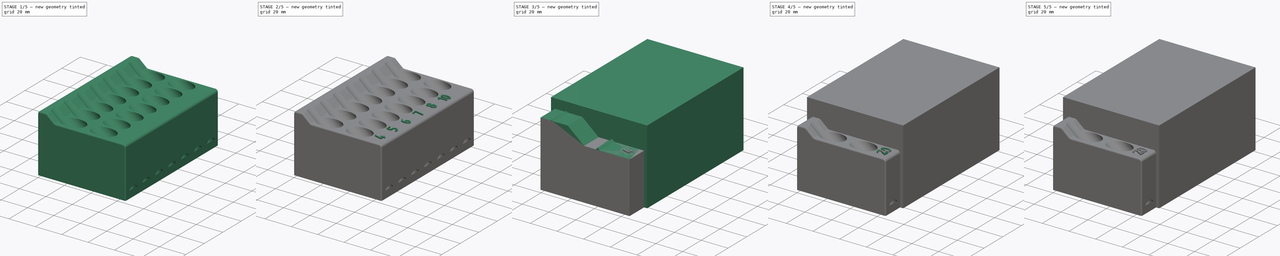
[diagram: build sequence overview — one tinted view per stage of 5, left to right]
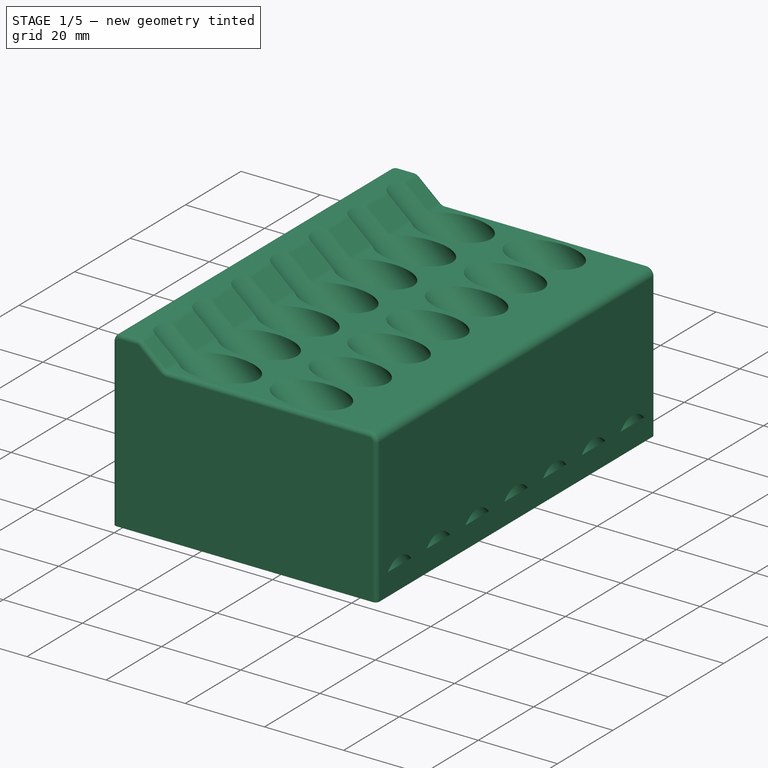
[diagram: stage 1 of 5 — iso view after this stage's code; geometry added in this stage tinted green]
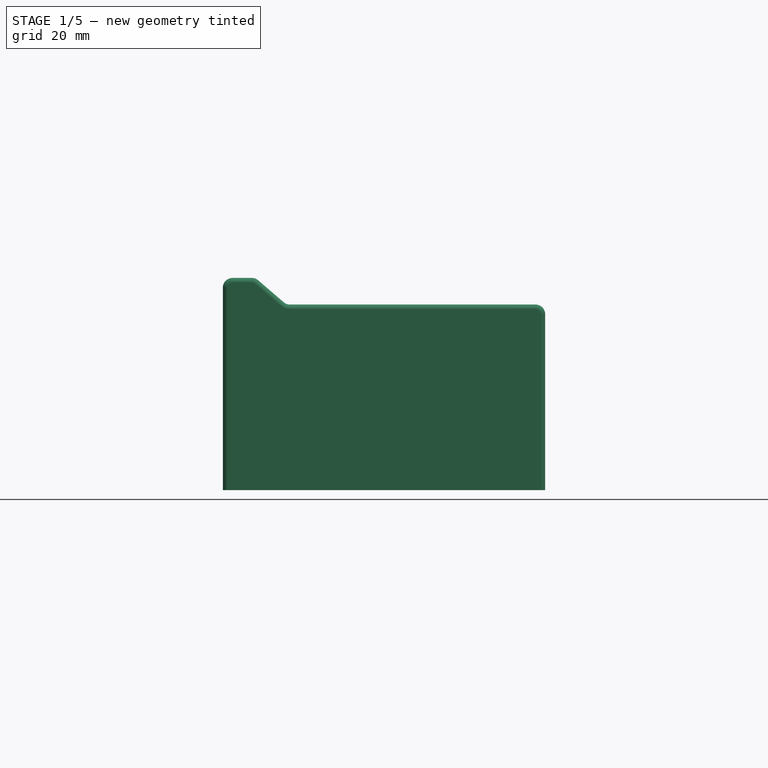
[diagram: stage 1 of 5 — front view after this stage's code; geometry added in this stage tinted green]
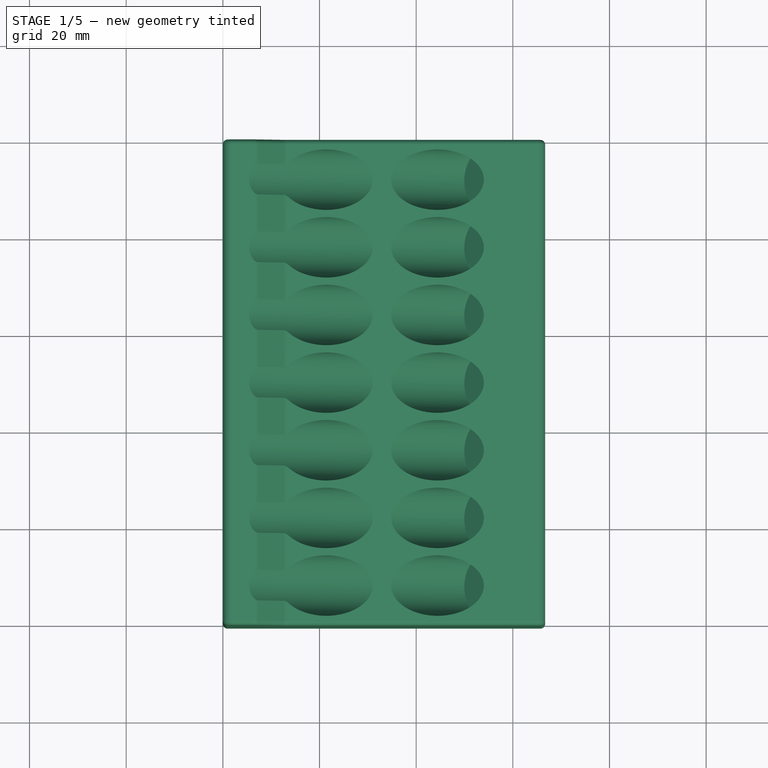
[diagram: stage 1 of 5 — top view after this stage's code; geometry added in this stage tinted green]
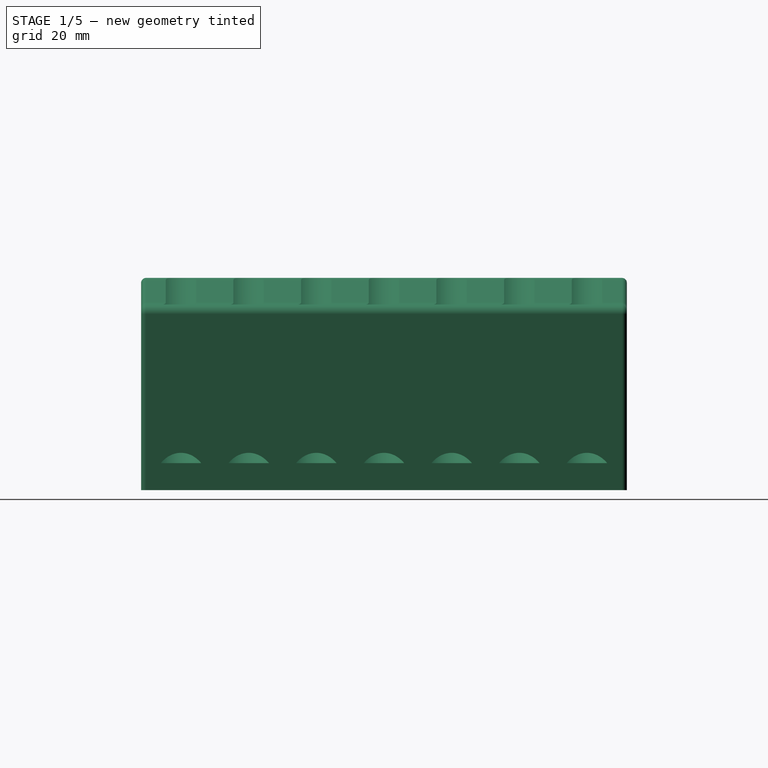
[diagram: stage 1 of 5 — right view after this stage's code; geometry added in this stage tinted green]
FCSTD DOCUMENT  (FreeCAD 1.0R39319 (Git))
Label: 10mm_bit_set
License: All rights reserved
LicenseURL: https://en.wikipedia.org/wiki/All_rights_reserved
objects: PartDesign::Pad×16, Part::Part2DObjectPython×14, Sketcher::SketchObject×10, PartDesign::Pocket×8, PartDesign::Fillet×2, PartDesign::Body×2, Part::Box×1
note: 115 computed .brp shape members not serialized (recipe doc carries the construction recipe); baked Part::Feature solids carry a one-line shape summary decoded from their .brp

FEATURE [Sketcher::SketchObject] Sketch004
  ArcFitTolerance = 1e-06
  AttachmentSupport = -> [XZ_Plane001]
  FullyConstrained = true
  MakeInternals = false
  MapMode = 5
  Placement = pos=(0,0,0) rot=(1,0,0;1.5708rad)
  sketch-geometry (32):
    g0: LineSegment [constr] StartX=0 StartY=0 StartZ=0 EndX=66.6893 EndY=0 EndZ=0
    g1: LineSegment [constr] StartX=66.6893 StartY=0 StartZ=0 EndX=66.6893 EndY=58 EndZ=0
    g2: LineSegment [constr] StartX=66.6893 StartY=58 StartZ=0 EndX=-20.2307 EndY=58 EndZ=0
    g3: LineSegment StartX=0 StartY=0 StartZ=0 EndX=66.6893 EndY=0 EndZ=0
    g4: LineSegment [constr] StartX=0 StartY=48.9016 StartZ=0 EndX=56.8651 EndY=0 EndZ=0
    g5: LineSegment [constr] StartX=0 StartY=48.9016 StartZ=0 EndX=7.82425 EndY=58 EndZ=0
    g6: LineSegment [constr] StartX=7.82425 StartY=58 StartZ=0 EndX=64.6893 EndY=9.09841 EndZ=0
    g7: LineSegment [constr] StartX=64.6893 StartY=9.09841 StartZ=0 EndX=56.8651 EndY=0 EndZ=0
    g8: LineSegment StartX=66.6893 StartY=0 StartZ=0 EndX=66.6893 EndY=38.3996 EndZ=0
    g9: LineSegment [constr] StartX=64.6893 StartY=9.09841 StartZ=0 EndX=66.6893 EndY=9.09841 EndZ=0
    g10: LineSegment StartX=0 StartY=0 StartZ=0 EndX=0 EndY=48.9016 EndZ=0
    g11: GeomPoint X=18.4043 Y=48.9016 Z=0
    g12: LineSegment [constr] StartX=34.119 StartY=39.3443 StartZ=0 EndX=56.8651 EndY=19.7837 EndZ=0
    g13: LineSegment [constr] StartX=56.8651 StartY=19.7837 StartZ=0 EndX=64.6893 EndY=28.8821 EndZ=0
    g14: LineSegment [constr] StartX=64.6893 StartY=28.8821 StartZ=0 EndX=41.9433 EndY=48.4427 EndZ=0
    g15: LineSegment [constr] StartX=41.9433 StartY=48.4427 StartZ=0 EndX=34.119 EndY=39.3443 EndZ=0
    g16: LineSegment [constr] StartX=64.6893 StartY=28.8821 StartZ=0 EndX=66.6893 EndY=28.8821 EndZ=0
    g17: LineSegment [constr] StartX=56.8651 StartY=19.7837 StartZ=0 EndX=54.909 EndY=17.5091 EndZ=0
    g18: LineSegment StartX=66.6893 StartY=38.3996 StartZ=0 EndX=56.6893 EndY=38.3996 EndZ=0
    g19: LineSegment StartX=20.4043 StartY=48.9016 StartZ=0 EndX=32.6165 EndY=38.3996 EndZ=0
    g20: LineSegment [constr] StartX=55.3853 StartY=36.8832 StartZ=0 EndX=56.6893 EndY=38.3996 EndZ=0
    g21: LineSegment StartX=20.4043 StartY=48.9016 StartZ=0 EndX=18.4043 EndY=48.9016 EndZ=0
    g22: LineSegment StartX=18.4043 StartY=48.9016 StartZ=0 EndX=9.20215 EndY=48.9016 EndZ=0
    g23: LineSegment StartX=0 StartY=48.9016 StartZ=0 EndX=7.66846 EndY=48.9016 EndZ=0
    g24: LineSegment StartX=7.66846 StartY=48.9016 StartZ=0 EndX=8.32048 EndY=49.6598 EndZ=0
    g25: LineSegment StartX=9.20215 StartY=48.9016 StartZ=0 EndX=8.32048 EndY=49.6598 EndZ=0
    g26: LineSegment [constr] StartX=8.32048 StartY=49.6598 StartZ=0 EndX=3.91213 EndY=53.4508 EndZ=0
    g27: LineSegment StartX=32.6165 StartY=38.3996 StartZ=0 EndX=41.3524 EndY=38.3996 EndZ=0
    g28: LineSegment StartX=41.3524 StartY=38.3996 StartZ=0 EndX=42.6564 EndY=39.916 EndZ=0
    g29: LineSegment StartX=42.6564 StartY=39.916 StartZ=0 EndX=44.4198 EndY=38.3996 EndZ=0
    g30: LineSegment StartX=44.4198 StartY=38.3996 StartZ=0 EndX=56.6893 EndY=38.3996 EndZ=0
    g31: LineSegment [constr] StartX=42.6564 StartY=39.916 StartZ=0 EndX=38.0312 EndY=43.8935 EndZ=0
  constraints (90):
    c: Coincident(g0,g1)
    c: Coincident(g1,g2)
    c: Horizontal(g0)
    c: Horizontal(g2)
    c: Vertical(g1)
    c: Coincident(g0,g-1)
    c: DistanceY(g0,g2) = 58
    c: Coincident(g3,g0)
    c: PointOnObject(g4,g3)
    c: Distance(g4) = 75
    c: Coincident(g5,g4)
    c: Distance(g5) = 12
    c: Perpendicular(g5,g4)
    c: PointOnObject(g5,g2)
    c: Coincident(g6,g5)
    c: Perpendicular(g5,g6)
    c: Coincident(g7,g6)
    c: Coincident(g7,g4)
    c: Perpendicular(g6,g7)
    c: Coincident(g8,g3)
    c: Vertical(g8)
    c: Coincident(g9,g6)
    c: PointOnObject(g9,g8)
    c: Horizontal(g9)
    c: DistanceX(g9,g9) = 2
    c: DistanceX(g2,g2) = 86.92
    c: Coincident(g10,g0)
    c: Coincident(g10,g4)
    c: Vertical(g10)
    c: PointOnObject(g11,g6)
    c: DistanceX(g11,g19) = 2
    c: Coincident(g13,g12)
    c: Coincident(g14,g13)
    c: Coincident(g15,g14)
    c: Coincident(g15,g12)
    c: Equal(g13,g5)
    c: Perpendicular(g13,g12)
    c: Perpendicular(g15,g12)
    c: Perpendicular(g14,g15)
    c: Parallel(g12,g6)
    c: Coincident(g16,g13)
    c: PointOnObject(g16,g8)
    c: Horizontal(g16)
    c: DistanceX(g16,g16) = 2
    c: Coincident(g17,g12)
    c: PointOnObject(g17,g6)
    c: Perpendicular(g12,g17)
    c: Distance(g17) = 3
    c: Distance(g14) = 30
    c: Coincident(g18,g8)
    c: Horizontal(g18)
    c: DistanceX(g18,g18) = 10
    c: Parallel(g19,g6)
    c: PointOnObject(g20,g14)
    c: Coincident(g20,g18)
    c: Perpendicular(g20,g14)
    c: Distance(g20) = 2
    c: Angle(g4) = -0.710247  'angle'
    c: Coincident(g0,g3)
    c: Coincident(g21,g19)
    c: Coincident(g21,g11)
    c: Horizontal(g21)
    c: Coincident(g22,g11)
    c: Horizontal(g22)
    c: Coincident(g23,g4)
    c: Horizontal(g23)
    c: Coincident(g24,g23)
    c: Coincident(g25,g22)
    c: Coincident(g25,g24)
    c: Parallel(g24,g5)
    c: Parallel(g25,g6)
    c: Distance(g24) = 1
    c: Coincident(g26,g24)
    c: Symmetric(g5,g5,g26)
    c: Perpendicular(g5,g26)
    c: Horizontal(g22,g23)
    c: Coincident(g27,g19)
    c: Horizontal(g27)
    c: Coincident(g28,g27)
    c: Coincident(g29,g28)
    c: Coincident(g30,g29)
    c: Coincident(g30,g18)
    c: Horizontal(g30)
    c: Parallel(g28,g15)
    c: Parallel(g29,g14)
    c: Coincident(g31,g28)
    c: Symmetric(g15,g15,g31)
    c: Perpendicular(g15,g31)
    c: Horizontal(g27,g29)
    c: Distance(g28) = 2
FEATURE [PartDesign::Pad] Pad009
  Direction = (0,-1,2e-16)
  Length = 100.5
  Length2 = 10
  Placement = pos=(0,0,0) rot=(1,0,0;1.5708rad)
  Profile = -> Sketch004
  ReferenceAxis = -> Sketch004 [N_Axis]
  Refine = true
  Suppressed = false
  Type = 0
FEATURE [Sketcher::SketchObject] Sketch005
  ArcFitTolerance = 1e-06
  AttachmentSupport = -> [Pad009]
  ExternalGeometry = -> [Pad009]
  FullyConstrained = true
  MakeInternals = false
  MapMode = 5
  Placement = pos=(4.78885,-1.8e-15,-4.11821) rot=(-0.41712,0,0.908851;3.14159rad)
  sketch-geometry (15):
    g0: Circle CenterX=-58.0772 CenterY=92.25 CenterZ=0 NormalX=0 NormalY=0 NormalZ=1 AngleXU=0 Radius=6.25
    g1: Circle CenterX=-58.0772 CenterY=78.25 CenterZ=0 NormalX=0 NormalY=0 NormalZ=1 AngleXU=0 Radius=6.25
    g2: Circle CenterX=-58.0772 CenterY=64.25 CenterZ=0 NormalX=0 NormalY=0 NormalZ=1 AngleXU=0 Radius=6.25
    g3: Circle CenterX=-58.0772 CenterY=8.25 CenterZ=0 NormalX=0 NormalY=0 NormalZ=1 AngleXU=0 Radius=6.25
    g4: Circle CenterX=-58.0772 CenterY=50.25 CenterZ=0 NormalX=0 NormalY=0 NormalZ=1 AngleXU=0 Radius=6.25
    g5: Circle CenterX=-58.0772 CenterY=36.25 CenterZ=0 NormalX=0 NormalY=0 NormalZ=1 AngleXU=0 Radius=6.25
    g6: Circle CenterX=-58.0772 CenterY=22.25 CenterZ=0 NormalX=0 NormalY=0 NormalZ=1 AngleXU=0 Radius=6.25
    g7: LineSegment [constr] StartX=-58.0772 StartY=86 StartZ=0 EndX=-58.0772 EndY=84.5 EndZ=0
    g8: LineSegment [constr] StartX=-58.0772 StartY=70.5 StartZ=0 EndX=-58.0772 EndY=72 EndZ=0
    g9: LineSegment [constr] StartX=-58.0772 StartY=56.5 StartZ=0 EndX=-58.0772 EndY=58 EndZ=0
    g10: LineSegment [constr] StartX=-58.0772 StartY=100.5 StartZ=0 EndX=-58.0772 EndY=98.5 EndZ=0
    g11: LineSegment [constr] StartX=-58.0772 StartY=42.5 StartZ=0 EndX=-58.0772 EndY=44 EndZ=0
    g12: LineSegment [constr] StartX=-58.0772 StartY=30 StartZ=0 EndX=-58.0772 EndY=28.5 EndZ=0
    g13: LineSegment [constr] StartX=-58.0772 StartY=14.5 StartZ=0 EndX=-58.0772 EndY=16 EndZ=0
    g14: LineSegment [constr] StartX=-58.0772 StartY=2 StartZ=0 EndX=-58.0772 EndY=2.8e-14 EndZ=0
  constraints (53):
    c: PointOnObject(g0,g-3)
    c: PointOnObject(g1,g-3)
    c: PointOnObject(g2,g-3)
    c: PointOnObject(g4,g-3)
    c: PointOnObject(g5,g-3)
    c: PointOnObject(g6,g-3)
    c: Equal(g0,g1)
    c: Equal(g1,g2)
    c: Equal(g2,g3)
    c: Equal(g3,g4)
    c: Equal(g4,g5)
    c: Equal(g5,g6)
    c: Diameter(g0) = 12.5
    c: PointOnObject(g7,g0)
    c: PointOnObject(g7,g-3)
    c: Vertical(g7)
    c: PointOnObject(g7,g1)
    c: DistanceY(g7,g7) = 1.5
    c: PointOnObject(g8,g2)
    c: PointOnObject(g8,g1)
    c: Vertical(g8)
    c: PointOnObject(g8,g-3)
    c: Equal(g8,g7)
    c: PointOnObject(g9,g4)
    c: PointOnObject(g9,g2)
    c: PointOnObject(g9,g-3)
    c: Vertical(g9)
    c: Equal(g9,g8)
    c: Coincident(g10,g-3)
    c: PointOnObject(g10,g0)
    c: Vertical(g10)
    c: DistanceY(g10,g10) = 2
    c: PointOnObject(g11,g5)
    c: PointOnObject(g11,g4)
    c: Vertical(g11)
    c: PointOnObject(g11,g-3)
    c: Equal(g11,g9)
    c: PointOnObject(g12,g5)
    c: PointOnObject(g12,g6)
    c: Vertical(g12)
    c: PointOnObject(g12,g-3)
    c: Equal(g12,g11)
    c: PointOnObject(g13,g3)
    c: PointOnObject(g13,g6)
    c: Vertical(g13)
    c: Vertical(g13,g-3)
    c: Equal(g13,g12)
    c: Vertical(g3,g6)
    c: PointOnObject(g14,g3)
    c: Vertical(g14)
    c: Equal(g14,g10)
    c: Perpendicular(g3,g14)
    c: DistanceY(g14,g10) = 100.5
FEATURE [PartDesign::Pocket] Pocket003
  BaseFeature = -> Pad009
  Direction = (0.758201,0,-0.652021)
  Length = 15
  Length2 = 5
  Placement = pos=(0,0,0) rot=(1,0,0;1.5708rad)
  Profile = -> Sketch005
  ReferenceAxis = -> Sketch005 [N_Axis]
  Refine = true
  Suppressed = false
  Type = 4
FEATURE [Sketcher::SketchObject] Sketch006
  ArcFitTolerance = 1e-06
  AttachmentSupport = -> [Pocket003]
  ExternalGeometry = -> [Pocket003]
  FullyConstrained = true
  MakeInternals = false
  MapMode = 5
  Placement = pos=(-19.7668,7.6e-15,16.9986) rot=(-0.41712,0,0.908851;3.14159rad)
  sketch-geometry (14):
    g0: Circle CenterX=-43.0772 CenterY=8.25 CenterZ=0 NormalX=0 NormalY=0 NormalZ=1 AngleXU=0 Radius=6.25
    g1: LineSegment [constr] StartX=-43.0772 StartY=-7.3e-15 StartZ=0 EndX=-43.0772 EndY=2 EndZ=0
    g2: LineSegment [constr] StartX=-43.0772 StartY=14.5 StartZ=0 EndX=-43.0772 EndY=16 EndZ=0
    g3: Circle CenterX=-43.0772 CenterY=22.25 CenterZ=0 NormalX=0 NormalY=0 NormalZ=1 AngleXU=0 Radius=6.25
    g4: Circle CenterX=-43.0772 CenterY=36.25 CenterZ=0 NormalX=0 NormalY=0 NormalZ=1 AngleXU=0 Radius=6.25
    g5: LineSegment [constr] StartX=-43.0772 StartY=28.5 StartZ=0 EndX=-43.0772 EndY=30 EndZ=0
    g6: Circle CenterX=-43.0772 CenterY=50.25 CenterZ=0 NormalX=0 NormalY=0 NormalZ=1 AngleXU=0 Radius=6.25
    g7: LineSegment [constr] StartX=-43.0772 StartY=42.5 StartZ=0 EndX=-43.0772 EndY=44 EndZ=0
    g8: Circle CenterX=-43.0772 CenterY=64.25 CenterZ=0 NormalX=0 NormalY=0 NormalZ=1 AngleXU=0 Radius=6.25
    g9: LineSegment [constr] StartX=-43.0772 StartY=56.5 StartZ=0 EndX=-43.0772 EndY=58 EndZ=0
    g10: Circle CenterX=-43.0772 CenterY=78.25 CenterZ=0 NormalX=0 NormalY=0 NormalZ=1 AngleXU=0 Radius=6.25
    g11: LineSegment [constr] StartX=-43.0772 StartY=70.5 StartZ=0 EndX=-43.0772 EndY=72 EndZ=0
    g12: LineSegment [constr] StartX=-43.0772 StartY=84.5 StartZ=0 EndX=-43.0772 EndY=86 EndZ=0
    g13: Circle CenterX=-43.0772 CenterY=92.25 CenterZ=0 NormalX=0 NormalY=0 NormalZ=1 AngleXU=0 Radius=6.25
  constraints (48):
    c: PointOnObject(g0,g-3)
    c: Coincident(g1,g-3)
    c: PointOnObject(g1,g-3)
    c: PointOnObject(g1,g0)
    c: Diameter(g0) = 12.5
    c: PointOnObject(g2,g0)
    c: PointOnObject(g2,g-3)
    c: Vertical(g2)
    c: DistanceY(g2,g2) = 1.5
    c: DistanceY(g1,g1) = 2
    c: PointOnObject(g3,g-3)
    c: PointOnObject(g2,g3)
    c: Equal(g0,g3)
    c: PointOnObject(g4,g-3)
    c: PointOnObject(g5,g3)
    c: PointOnObject(g5,g-3)
    c: Vertical(g5)
    c: PointOnObject(g5,g4)
    c: Equal(g2,g5)
    c: Equal(g3,g4)
    c: PointOnObject(g7,g4)
    c: PointOnObject(g7,g6)
    c: Vertical(g7)
    c: PointOnObject(g7,g-3)
    c: Equal(g7,g5)
    c: PointOnObject(g6,g-3)
    c: Equal(g4,g6)
    c: PointOnObject(g8,g-3)
    c: PointOnObject(g9,g6)
    c: PointOnObject(g9,g8)
    c: Vertical(g9)
    c: PointOnObject(g9,g-3)
    c: Equal(g6,g8)
    c: Equal(g9,g7)
    c: PointOnObject(g10,g-3)
    c: PointOnObject(g11,g8)
    c: PointOnObject(g11,g10)
    c: Vertical(g11)
    c: PointOnObject(g11,g-3)
    c: Equal(g10,g8)
    c: Equal(g11,g9)
    c: PointOnObject(g12,g10)
    c: PointOnObject(g12,g-3)
    c: Vertical(g12)
    c: Equal(g12,g11)
    c: PointOnObject(g13,g-3)
    c: PointOnObject(g12,g13)
    c: Equal(g13,g10)
FEATURE [PartDesign::Pocket] Pocket004
  BaseFeature = -> Pocket003
  Direction = (0.758201,0,-0.652021)
  Length = 73
  Length2 = 6
  Placement = pos=(0,0,0) rot=(1,0,0;1.5708rad)
  Profile = -> Sketch006
  ReferenceAxis = -> Sketch006 [N_Axis]
  Refine = true
  Suppressed = false
  Type = 4
FEATURE [Sketcher::SketchObject] Sketch007
  ArcFitTolerance = 1e-06
  AttachmentSupport = -> [Pocket004]
  ExternalGeometry = -> [Pocket004]
  FullyConstrained = true
  MakeInternals = false
  MapMode = 5
  Placement = pos=(0,-100.5,0) rot=(1,0,0;1.5708rad)
  sketch-geometry (18):
    g0: LineSegment StartX=13.8814 StartY=38.3996 StartZ=0 EndX=64.6893 EndY=38.3996 EndZ=0
    g1: LineSegment StartX=66.6893 StartY=36.3996 StartZ=0 EndX=66.6893 EndY=34.3996 EndZ=0
    g2: ArcOfCircle CenterX=64.6893 CenterY=36.3996 CenterZ=0 NormalX=0 NormalY=0 NormalZ=1 AngleXU=0 Radius=2 StartAngle=-9e-16 EndAngle=1.5708
    g3: GeomPoint [constr] X=66.6893 Y=38.3996 Z=0
    g4: LineSegment StartX=12.5773 StartY=38.8832 StartZ=0 EndX=7.30404 EndY=43.418 EndZ=0
    g5: LineSegment StartX=0 StartY=41.9016 StartZ=0 EndX=0 EndY=39.9016 EndZ=0
    g6: ArcOfCircle CenterX=2 CenterY=41.9016 CenterZ=0 NormalX=0 NormalY=0 NormalZ=1 AngleXU=0 Radius=2 StartAngle=1.5708 EndAngle=3.14159
    g7: GeomPoint [constr] X=0 Y=48.9016 Z=0
    g8: LineSegment StartX=0 StartY=39.9016 StartZ=0 EndX=-2 EndY=39.9016 EndZ=0
    g9: LineSegment StartX=-2 StartY=39.9016 StartZ=0 EndX=-2 EndY=69.9016 EndZ=0
    g10: LineSegment StartX=-2 StartY=69.9016 StartZ=0 EndX=68.6893 EndY=69.9016 EndZ=0
    g11: LineSegment StartX=68.6893 StartY=69.9016 StartZ=0 EndX=68.6893 EndY=34.3996 EndZ=0
    g12: LineSegment StartX=68.6893 StartY=34.3996 StartZ=0 EndX=66.6893 EndY=34.3996 EndZ=0
    g13: LineSegment [constr] StartX=20.4043 StartY=48.9016 StartZ=0 EndX=32.6165 EndY=38.3996 EndZ=0
    g14: ArcOfCircle CenterX=6 CenterY=41.9016 CenterZ=0 NormalX=0 NormalY=0 NormalZ=1 AngleXU=0 Radius=2 StartAngle=0.860549 EndAngle=1.5708
    g15: ArcOfCircle CenterX=13.8814 CenterY=40.3996 CenterZ=0 NormalX=0 NormalY=0 NormalZ=1 AngleXU=0 Radius=2 StartAngle=4.00214 EndAngle=4.71239
    g16: GeomPoint [constr] X=13.1397 Y=38.3996 Z=0
    g17: LineSegment StartX=2 StartY=43.9016 StartZ=0 EndX=6 EndY=43.9016 EndZ=0
  constraints (44):
    c: Vertical(g1)
    c: Coincident(g3,g-4)
    c: PointOnObject(g3,g0)
    c: PointOnObject(g3,g1)
    c: Tangent(g0,g2) = 1.5708
    c: Tangent(g1,g2) = 1.5708
    c: Radius(g2) = 2
    c: Vertical(g5)
    c: Tangent(g5,g6) = -1.5708
    c: Radius(g6) = 2
    c: Coincident(g7,g-3)
    c: Coincident(g8,g5)
    c: Horizontal(g8)
    c: Coincident(g9,g8)
    c: Vertical(g9)
    c: Coincident(g10,g9)
    c: Horizontal(g10)
    c: Coincident(g11,g10)
    c: Vertical(g11)
    c: Coincident(g12,g11)
    c: Coincident(g12,g1)
    c: Horizontal(g12)
    c: DistanceY(g1,g1) = 2
    c: Equal(g12,g1)
    c: DistanceY(g5,g5) = 2
    c: Equal(g8,g5)
    c: DistanceY(g9,g9) = 30
    c: Coincident(g13,g-6)
    c: Coincident(g13,g-5)
    c: Parallel(g4,g13)
    c: Horizontal(g0)
    c: Tangent(g4,g14) = -1.5708
    c: Radius(g14) = 2
    c: PointOnObject(g16,g0)
    c: PointOnObject(g16,g4)
    c: Tangent(g0,g15) = -1.5708
    c: Tangent(g4,g15) = 1.5708
    c: Equal(g15,g14)
    c: Horizontal(g17)
    c: Tangent(g17,g6) = 1.5708
    c: Tangent(g17,g14) = 1.5708
    c: PointOnObject(g5,g-2)
    c: DistanceY(g5,g7) = 9
    c: DistanceX(g17,g17) = 4
FEATURE [PartDesign::Pocket] Pocket005
  BaseFeature = -> Pocket004
  Direction = (0,1,-2e-16)
  Length = 110
  Length2 = 5
  Placement = pos=(0,0,0) rot=(1,0,0;1.5708rad)
  Profile = -> Sketch007
  ReferenceAxis = -> Sketch007 [N_Axis]
  Refine = true
  Suppressed = false
  Type = 0
FEATURE [PartDesign::Fillet] Fillet001
  Base = -> Pocket005 [Edge72,Edge5]
  BaseFeature = -> Pocket005
  Placement = pos=(0,0,0) rot=(1,0,0;1.5708rad)
  Radius = 1
  Refine = true
  SupportTransform = false
  Suppressed = false
  UseAllEdges = false
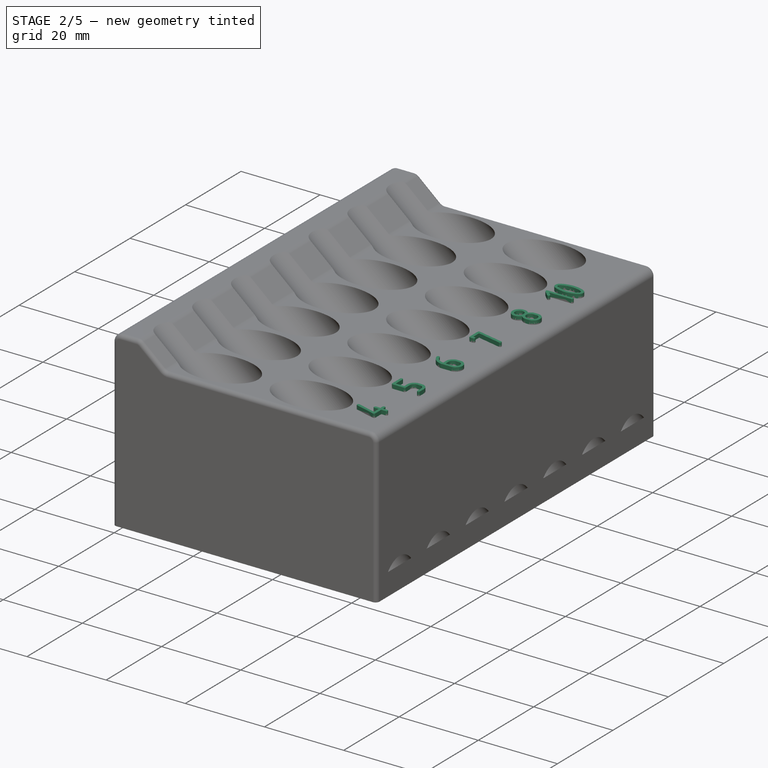
[diagram: stage 2 of 5 — iso view after this stage's code; geometry added in this stage tinted green]
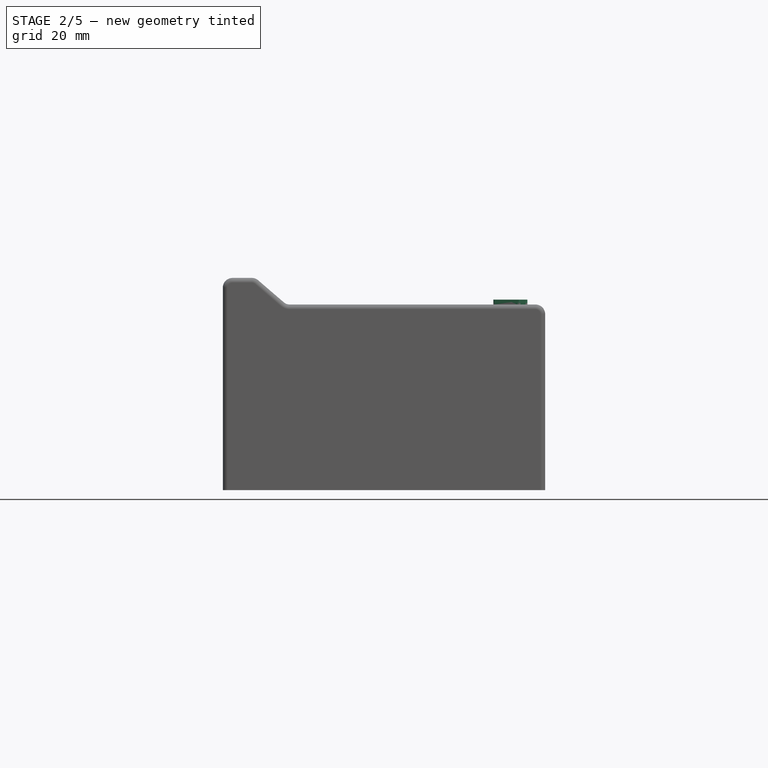
[diagram: stage 2 of 5 — front view after this stage's code; geometry added in this stage tinted green]
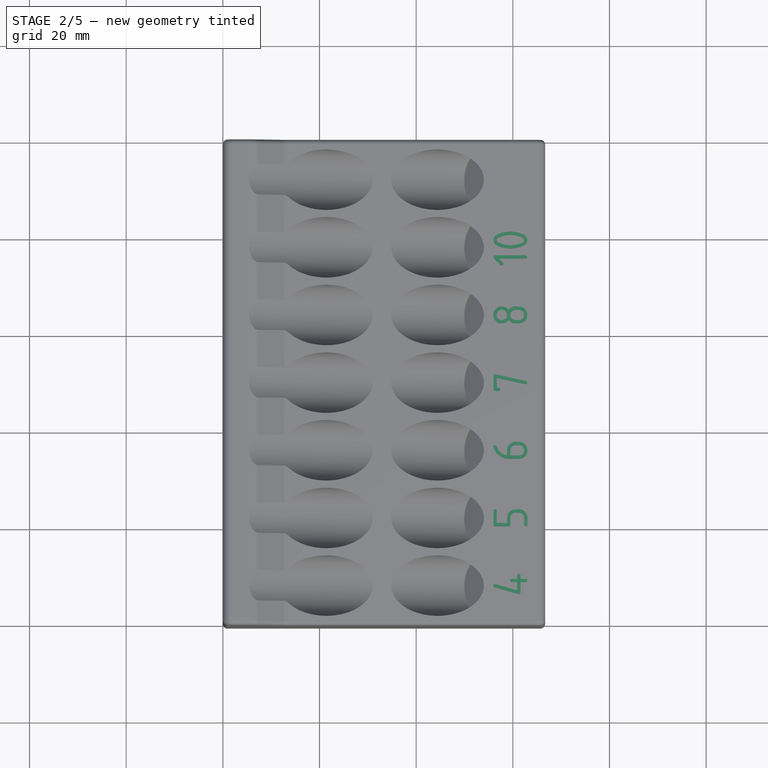
[diagram: stage 2 of 5 — top view after this stage's code; geometry added in this stage tinted green]
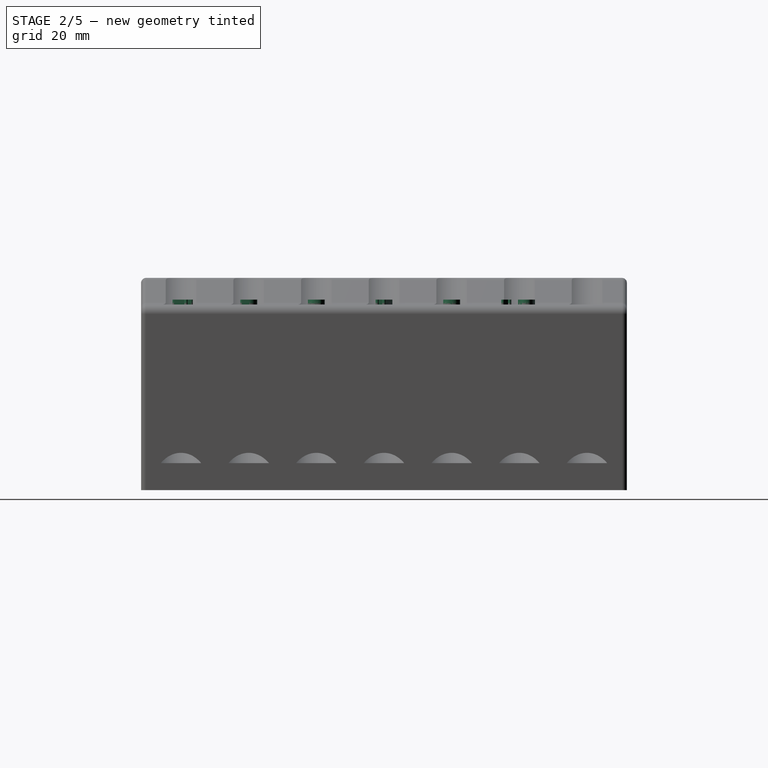
[diagram: stage 2 of 5 — right view after this stage's code; geometry added in this stage tinted green]
FEATURE [Part::Part2DObjectPython] ShapeString007  # Draft 2D object (typed FeaturePython)
  AttachmentOffset = pos=(-63,94,0) rot=(0,0,1;-1.5708rad)
  AttachmentSupport = -> [Fillet001]
  FontFile = <userpath>/Downloads/osifont-master/osifont-master/osifont.ttf
  Fuse = false
  Justification = 6
  JustificationReference = 0
  KeepLeftMargin = false
  MakeFace = true
  MapMode = 5
  ObliqueAngle = 0
  Placement = pos=(63,-94,38.3996) rot=(0,0,-1;4.71239rad)
  ScaleToSize = true
  Size = 7
  String = 4
  Tracking = 0
FEATURE [PartDesign::Pad] Pad010
  BaseFeature = -> Fillet001
  Direction = (0,0,1)
  Length = 1
  Length2 = 10
  Placement = pos=(0,0,0) rot=(1,0,0;1.5708rad)
  Profile = -> ShapeString007
  ReferenceAxis = -> ShapeString007 [N_Axis]
  Refine = true
  Suppressed = false
  Type = 0
FEATURE [Part::Part2DObjectPython] ShapeString008  # Draft 2D object (typed FeaturePython)
  AttachmentOffset = pos=(-63,80,0) rot=(0,0,1;-1.5708rad)
  AttachmentSupport = -> [Fillet001]
  FontFile = <userpath>/Downloads/osifont-master/osifont-master/osifont.ttf
  Fuse = false
  Justification = 6
  JustificationReference = 0
  KeepLeftMargin = false
  MakeFace = true
  MapMode = 5
  ObliqueAngle = 0
  Placement = pos=(63,-80,38.3996) rot=(0,0,-1;4.71239rad)
  ScaleToSize = true
  Size = 7
  String = 5
  Tracking = 0
FEATURE [PartDesign::Pad] Pad011
  BaseFeature = -> Pad010
  Direction = (0,0,1)
  Length = 1
  Length2 = 10
  Placement = pos=(0,0,0) rot=(1,0,0;1.5708rad)
  Profile = -> ShapeString008
  ReferenceAxis = -> ShapeString008 [N_Axis]
  Refine = true
  Suppressed = false
  Type = 0
FEATURE [Part::Part2DObjectPython] ShapeString009  # Draft 2D object (typed FeaturePython)
  AttachmentOffset = pos=(-63,66,0) rot=(0,0,1;-1.5708rad)
  AttachmentSupport = -> [Fillet001]
  FontFile = <userpath>/Downloads/osifont-master/osifont-master/osifont.ttf
  Fuse = false
  Justification = 6
  JustificationReference = 0
  KeepLeftMargin = false
  MakeFace = true
  MapMode = 5
  ObliqueAngle = 0
  Placement = pos=(63,-66,38.3996) rot=(0,0,-1;4.71239rad)
  ScaleToSize = true
  Size = 7
  String = 6
  Tracking = 0
FEATURE [PartDesign::Pad] Pad012
  BaseFeature = -> Pad011
  Direction = (0,0,1)
  Length = 1
  Length2 = 10
  Placement = pos=(0,0,0) rot=(1,0,0;1.5708rad)
  Profile = -> ShapeString009
  ReferenceAxis = -> ShapeString009 [N_Axis]
  Refine = true
  Suppressed = false
  Type = 0
FEATURE [Part::Part2DObjectPython] ShapeString010  # Draft 2D object (typed FeaturePython)
  AttachmentOffset = pos=(-63,52,0) rot=(0,0,1;-1.5708rad)
  AttachmentSupport = -> [Fillet001]
  FontFile = <userpath>/Downloads/osifont-master/osifont-master/osifont.ttf
  Fuse = false
  Justification = 6
  JustificationReference = 0
  KeepLeftMargin = false
  MakeFace = true
  MapMode = 5
  ObliqueAngle = 0
  Placement = pos=(63,-52,38.3996) rot=(0,0,-1;4.71239rad)
  ScaleToSize = true
  Size = 7
  String = 7
  Tracking = 0
FEATURE [PartDesign::Pad] Pad013
  BaseFeature = -> Pad012
  Direction = (0,0,1)
  Length = 1
  Length2 = 10
  Placement = pos=(0,0,0) rot=(1,0,0;1.5708rad)
  Profile = -> ShapeString010
  ReferenceAxis = -> ShapeString010 [N_Axis]
  Refine = true
  Suppressed = false
  Type = 0
FEATURE [Part::Part2DObjectPython] ShapeString011  # Draft 2D object (typed FeaturePython)
  AttachmentOffset = pos=(-63,38,0) rot=(0,0,1;-1.5708rad)
  AttachmentSupport = -> [Fillet001]
  FontFile = <userpath>/Downloads/osifont-master/osifont-master/osifont.ttf
  Fuse = false
  Justification = 6
  JustificationReference = 0
  KeepLeftMargin = false
  MakeFace = true
  MapMode = 5
  ObliqueAngle = 0
  Placement = pos=(63,-38,38.3996) rot=(0,0,-1;4.71239rad)
  ScaleToSize = true
  Size = 7
  String = 8
  Tracking = 0
FEATURE [PartDesign::Pad] Pad014
  BaseFeature = -> Pad013
  Direction = (0,0,1)
  Length = 1
  Length2 = 10
  Placement = pos=(0,0,0) rot=(1,0,0;1.5708rad)
  Profile = -> ShapeString011
  ReferenceAxis = -> ShapeString011 [N_Axis]
  Refine = true
  Suppressed = false
  Type = 0
FEATURE [Part::Part2DObjectPython] ShapeString012  # Draft 2D object (typed FeaturePython)
  AttachmentOffset = pos=(-63,26,0) rot=(0,0,1;-1.5708rad)
  AttachmentSupport = -> [Fillet001]
  FontFile = <userpath>/Downloads/osifont-master/osifont-master/osifont.ttf
  Fuse = false
  Justification = 6
  JustificationReference = 0
  KeepLeftMargin = false
  MakeFace = true
  MapMode = 5
  ObliqueAngle = 0
  Placement = pos=(63,-26,38.3996) rot=(0,0,-1;4.71239rad)
  ScaleToSize = true
  Size = 7
  String = 10
  Tracking = 0
FEATURE [PartDesign::Pad] Pad015
  BaseFeature = -> Pad014
  Direction = (0,0,1)
  Length = 1
  Length2 = 10
  Placement = pos=(0,0,0) rot=(1,0,0;1.5708rad)
  Profile = -> ShapeString012
  ReferenceAxis = -> ShapeString012 [N_Axis]
  Refine = true
  Suppressed = false
  Type = 0
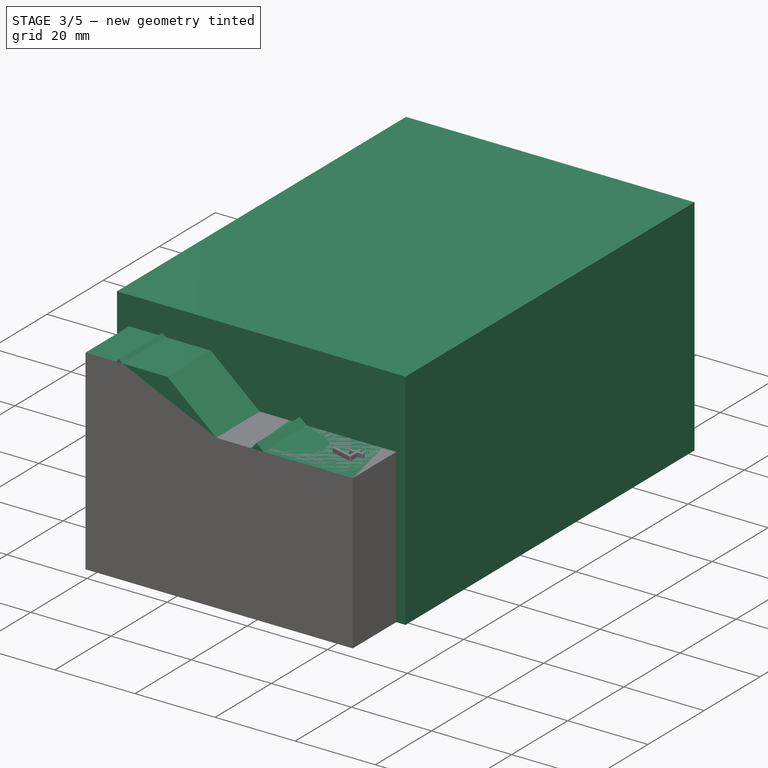
[diagram: stage 3 of 5 — iso view after this stage's code; geometry added in this stage tinted green]
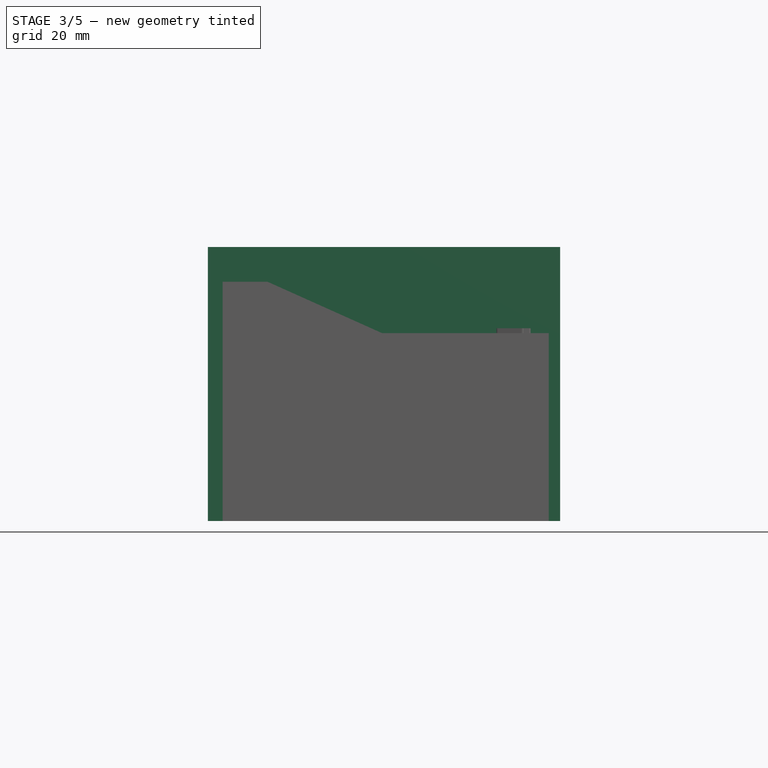
[diagram: stage 3 of 5 — front view after this stage's code; geometry added in this stage tinted green]
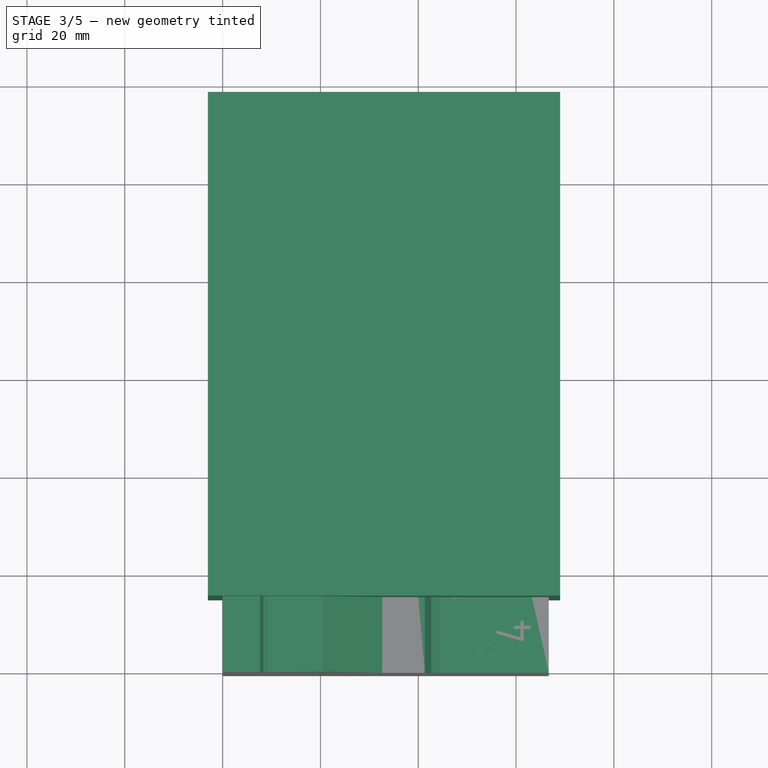
[diagram: stage 3 of 5 — top view after this stage's code; geometry added in this stage tinted green]
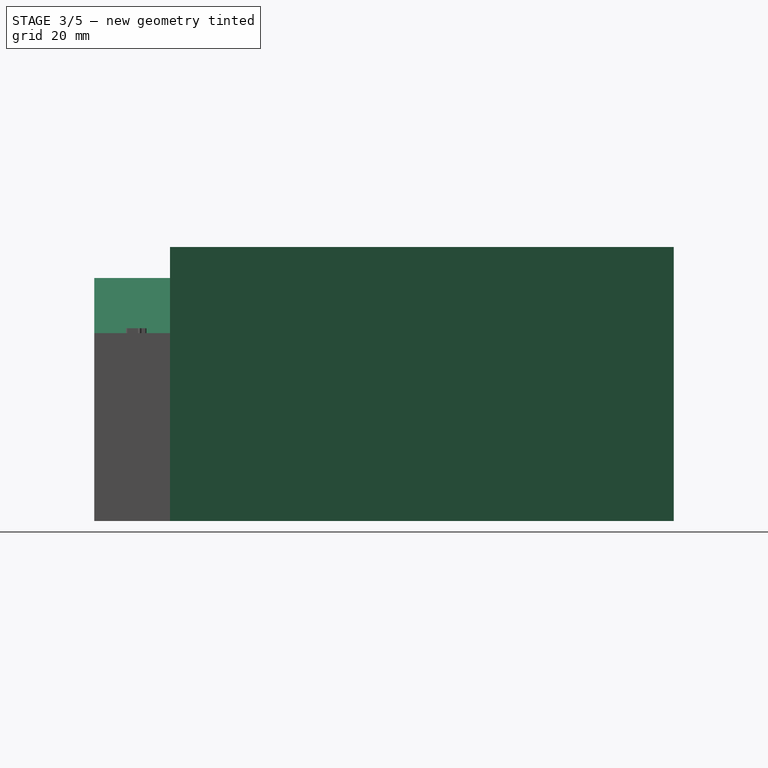
[diagram: stage 3 of 5 — right view after this stage's code; geometry added in this stage tinted green]
FEATURE [Sketcher::SketchObject] Sketch
  ArcFitTolerance = 1e-06
  AttachmentSupport = -> [XZ_Plane]
  FullyConstrained = true
  MakeInternals = false
  MapMode = 5
  Placement = pos=(0,0,0) rot=(1,0,0;1.5708rad)
  sketch-geometry (32):
    g0: LineSegment [constr] StartX=0 StartY=0 StartZ=0 EndX=66.6893 EndY=0 EndZ=0
    g1: LineSegment [constr] StartX=66.6893 StartY=0 StartZ=0 EndX=66.6893 EndY=58 EndZ=0
    g2: LineSegment [constr] StartX=66.6893 StartY=58 StartZ=0 EndX=-20.2307 EndY=58 EndZ=0
    g3: LineSegment StartX=0 StartY=0 StartZ=0 EndX=66.6893 EndY=0 EndZ=0
    g4: LineSegment [constr] StartX=0 StartY=48.9016 StartZ=0 EndX=56.8651 EndY=0 EndZ=0
    g5: LineSegment [constr] StartX=0 StartY=48.9016 StartZ=0 EndX=7.82425 EndY=58 EndZ=0
    g6: LineSegment [constr] StartX=7.82425 StartY=58 StartZ=0 EndX=64.6893 EndY=9.09841 EndZ=0
    g7: LineSegment [constr] StartX=64.6893 StartY=9.09841 StartZ=0 EndX=56.8651 EndY=0 EndZ=0
    g8: LineSegment StartX=66.6893 StartY=0 StartZ=0 EndX=66.6893 EndY=38.3996 EndZ=0
    g9: LineSegment [constr] StartX=64.6893 StartY=9.09841 StartZ=0 EndX=66.6893 EndY=9.09841 EndZ=0
    g10: LineSegment StartX=0 StartY=0 StartZ=0 EndX=0 EndY=48.9016 EndZ=0
    g11: GeomPoint X=18.4043 Y=48.9016 Z=0
    g12: LineSegment [constr] StartX=34.119 StartY=39.3443 StartZ=0 EndX=56.8651 EndY=19.7837 EndZ=0
    g13: LineSegment [constr] StartX=56.8651 StartY=19.7837 StartZ=0 EndX=64.6893 EndY=28.8821 EndZ=0
    g14: LineSegment [constr] StartX=64.6893 StartY=28.8821 StartZ=0 EndX=41.9433 EndY=48.4427 EndZ=0
    g15: LineSegment [constr] StartX=41.9433 StartY=48.4427 StartZ=0 EndX=34.119 EndY=39.3443 EndZ=0
    g16: LineSegment [constr] StartX=64.6893 StartY=28.8821 StartZ=0 EndX=66.6893 EndY=28.8821 EndZ=0
    g17: LineSegment [constr] StartX=56.8651 StartY=19.7837 StartZ=0 EndX=54.909 EndY=17.5091 EndZ=0
    g18: LineSegment StartX=66.6893 StartY=38.3996 StartZ=0 EndX=56.6893 EndY=38.3996 EndZ=0
    g19: LineSegment StartX=20.4043 StartY=48.9016 StartZ=0 EndX=32.6165 EndY=38.3996 EndZ=0
    g20: LineSegment [constr] StartX=55.3853 StartY=36.8832 StartZ=0 EndX=56.6893 EndY=38.3996 EndZ=0
    g21: LineSegment StartX=20.4043 StartY=48.9016 StartZ=0 EndX=18.4043 EndY=48.9016 EndZ=0
    g22: LineSegment StartX=18.4043 StartY=48.9016 StartZ=0 EndX=9.20215 EndY=48.9016 EndZ=0
    g23: LineSegment StartX=0 StartY=48.9016 StartZ=0 EndX=7.66846 EndY=48.9016 EndZ=0
    g24: LineSegment StartX=7.66846 StartY=48.9016 StartZ=0 EndX=8.32048 EndY=49.6598 EndZ=0
    g25: LineSegment StartX=9.20215 StartY=48.9016 StartZ=0 EndX=8.32048 EndY=49.6598 EndZ=0
    g26: LineSegment [constr] StartX=8.32048 StartY=49.6598 StartZ=0 EndX=3.91213 EndY=53.4508 EndZ=0
    g27: LineSegment StartX=32.6165 StartY=38.3996 StartZ=0 EndX=41.3524 EndY=38.3996 EndZ=0
    g28: LineSegment StartX=41.3524 StartY=38.3996 StartZ=0 EndX=42.6564 EndY=39.916 EndZ=0
    g29: LineSegment StartX=42.6564 StartY=39.916 StartZ=0 EndX=44.4198 EndY=38.3996 EndZ=0
    g30: LineSegment StartX=44.4198 StartY=38.3996 StartZ=0 EndX=56.6893 EndY=38.3996 EndZ=0
    g31: LineSegment [constr] StartX=42.6564 StartY=39.916 StartZ=0 EndX=38.0312 EndY=43.8935 EndZ=0
  constraints (90):
    c: Coincident(g0,g1)
    c: Coincident(g1,g2)
    c: Horizontal(g0)
    c: Horizontal(g2)
    c: Vertical(g1)
    c: Coincident(g0,g-1)
    c: DistanceY(g0,g2) = 58
    c: Coincident(g3,g0)
    c: PointOnObject(g4,g3)
    c: Distance(g4) = 75
    c: Coincident(g5,g4)
    c: Distance(g5) = 12
    c: Perpendicular(g5,g4)
    c: PointOnObject(g5,g2)
    c: Coincident(g6,g5)
    c: Perpendicular(g5,g6)
    c: Coincident(g7,g6)
    c: Coincident(g7,g4)
    c: Perpendicular(g6,g7)
    c: Coincident(g8,g3)
    c: Vertical(g8)
    c: Coincident(g9,g6)
    c: PointOnObject(g9,g8)
    c: Horizontal(g9)
    c: DistanceX(g9,g9) = 2
    c: DistanceX(g2,g2) = 86.92
    c: Coincident(g10,g0)
    c: Coincident(g10,g4)
    c: Vertical(g10)
    c: PointOnObject(g11,g6)
    c: DistanceX(g11,g19) = 2
    c: Coincident(g13,g12)
    c: Coincident(g14,g13)
    c: Coincident(g15,g14)
    c: Coincident(g15,g12)
    c: Equal(g13,g5)
    c: Perpendicular(g13,g12)
    c: Perpendicular(g15,g12)
    c: Perpendicular(g14,g15)
    c: Parallel(g12,g6)
    c: Coincident(g16,g13)
    c: PointOnObject(g16,g8)
    c: Horizontal(g16)
    c: DistanceX(g16,g16) = 2
    c: Coincident(g17,g12)
    c: PointOnObject(g17,g6)
    c: Perpendicular(g12,g17)
    c: Distance(g17) = 3
    c: Distance(g14) = 30
    c: Coincident(g18,g8)
    c: Horizontal(g18)
    c: DistanceX(g18,g18) = 10
    c: Parallel(g19,g6)
    c: PointOnObject(g20,g14)
    c: Coincident(g20,g18)
    c: Perpendicular(g20,g14)
    c: Distance(g20) = 2
    c: Angle(g4) = -0.710247  'angle'
    c: Coincident(g0,g3)
    c: Coincident(g21,g19)
    c: Coincident(g21,g11)
    c: Horizontal(g21)
    c: Coincident(g22,g11)
    c: Horizontal(g22)
    c: Coincident(g23,g4)
    c: Horizontal(g23)
    c: Coincident(g24,g23)
    c: Coincident(g25,g22)
    c: Coincident(g25,g24)
    c: Parallel(g24,g5)
    c: Parallel(g25,g6)
    c: Distance(g24) = 1
    c: Coincident(g26,g24)
    c: Symmetric(g5,g5,g26)
    c: Perpendicular(g5,g26)
    c: Horizontal(g22,g23)
    c: Coincident(g27,g19)
    c: Horizontal(g27)
    c: Coincident(g28,g27)
    c: Coincident(g29,g28)
    c: Coincident(g30,g29)
    c: Coincident(g30,g18)
    c: Horizontal(g30)
    c: Parallel(g28,g15)
    c: Parallel(g29,g14)
    c: Coincident(g31,g28)
    c: Symmetric(g15,g15,g31)
    c: Perpendicular(g15,g31)
    c: Horizontal(g27,g29)
    c: Distance(g28) = 2
FEATURE [PartDesign::Pad] Pad
  Direction = (0,-1,2e-16)
  Length = 100.5
  Length2 = 10
  Placement = pos=(0,0,0) rot=(1,0,0;1.5708rad)
  Profile = -> Sketch
  ReferenceAxis = -> Sketch [N_Axis]
  Refine = true
  Suppressed = false
  Type = 0
FEATURE [PartDesign::Body] Body  label="Torx"
  AllowCompound = false
  Group = -> [Sketch,Pad,Sketch001,Pocket,Sketch002,Pocket001,Sketch003,Pocket002,Fillet,ShapeString,ShapeString001,ShapeString002,ShapeString003,ShapeString004,ShapeString005,ShapeString006,Pad002,Pad003,Pad004,Pad005,Pad006,Pad007,Pad008]
  Origin = -> Origin
  Tip = -> Pad008
FEATURE [Part::Box] Box  label="Cube"
  AttacherType = Attacher::AttachEngine3D
  Height = 56
  Length = 72
  Placement = pos=(-3,-85,0) rot=(0,0,1;0rad)
  Width = 103
FEATURE [Part::Part2DObjectPython] ShapeString013  # Draft 2D object (typed FeaturePython)
  AttachmentOffset = pos=(-63,12,0) rot=(0,0,1;-1.5708rad)
  AttachmentSupport = -> [Fillet001]
  FontFile = <userpath>/Downloads/osifont-master/osifont-master/osifont.ttf
  Fuse = false
  Justification = 6
  JustificationReference = 0
  KeepLeftMargin = false
  MakeFace = true
  MapMode = 5
  ObliqueAngle = 0
  Placement = pos=(63,-12,38.3996) rot=(0,0,-1;4.71239rad)
  ScaleToSize = true
  Size = 7
  String = 12
  Tracking = 0
FEATURE [PartDesign::Pad] Pad016
  BaseFeature = -> Pad015
  Direction = (0,0,1)
  Length = 1
  Length2 = 10
  Placement = pos=(0,0,0) rot=(1,0,0;1.5708rad)
  Profile = -> ShapeString013
  ReferenceAxis = -> ShapeString013 [N_Axis]
  Refine = true
  Suppressed = false
  Type = 0
FEATURE [Sketcher::SketchObject] Sketch008
  ArcFitTolerance = 1e-06
  AttachmentSupport = -> [Pad016]
  ExternalGeometry = -> [Pad016]
  FullyConstrained = true
  MakeInternals = false
  MapMode = 5
  Placement = pos=(16.1619,0,-13.8985) rot=(-0.41712,0,0.908851;3.14159rad)
  sketch-geometry (1):
    g0: Circle CenterX=-58.0772 CenterY=8.25 CenterZ=0 NormalX=0 NormalY=0 NormalZ=1 AngleXU=0 Radius=7.25
  constraints (2):
    c: Coincident(g0,g-3)
    c: Diameter(g0) = 14.5
FEATURE [PartDesign::Pocket] Pocket006
  BaseFeature = -> Pad016
  Direction = (0.758201,0,-0.652021)
  Length = 30
  Length2 = 5
  Placement = pos=(0,0,0) rot=(1,0,0;1.5708rad)
  Profile = -> Sketch008
  ReferenceAxis = -> Sketch008 [N_Axis]
  Refine = true
  Reversed = true
  Suppressed = false
  Type = 0
FEATURE [Sketcher::SketchObject] Sketch009
  ArcFitTolerance = 1e-06
  AttachmentSupport = -> [Pocket006]
  ExternalGeometry = -> [Pocket006]
  FullyConstrained = true
  MakeInternals = false
  MapMode = 5
  Placement = pos=(35.5819,0,-30.5989) rot=(-0.41712,0,0.908851;3.14159rad)
  sketch-geometry (1):
    g0: Circle CenterX=-43.0772 CenterY=8.25 CenterZ=0 NormalX=0 NormalY=0 NormalZ=1 AngleXU=0 Radius=7.25
  constraints (2):
    c: Coincident(g0,g-3)
    c: Diameter(g0) = 14.5
FEATURE [PartDesign::Pocket] Pocket007
  BaseFeature = -> Pocket006
  Direction = (0.758201,0,-0.652021)
  Length = 100
  Length2 = 5
  Placement = pos=(0,0,0) rot=(1,0,0;1.5708rad)
  Profile = -> Sketch009
  ReferenceAxis = -> Sketch009 [N_Axis]
  Refine = true
  Reversed = true
  Suppressed = false
  Type = 0
FEATURE [PartDesign::Body] Body001  label="Hex"
  AllowCompound = false
  Group = -> [Sketch004,Pad009,Sketch005,Pocket003,Sketch006,Pocket004,Sketch007,Pocket005,Fillet001,ShapeString007,ShapeString008,ShapeString009,ShapeString010,ShapeString011,ShapeString012,ShapeString013,Pad010,Pad011,Pad012,Pad013,Pad014,Pad015,Pad016,Sketch008,Pocket006,Sketch009,Pocket007]
  Origin = -> Origin001
  Placement = pos=(0,110.6,0) rot=(0,0,1;0rad)
  Tip = -> Pocket007
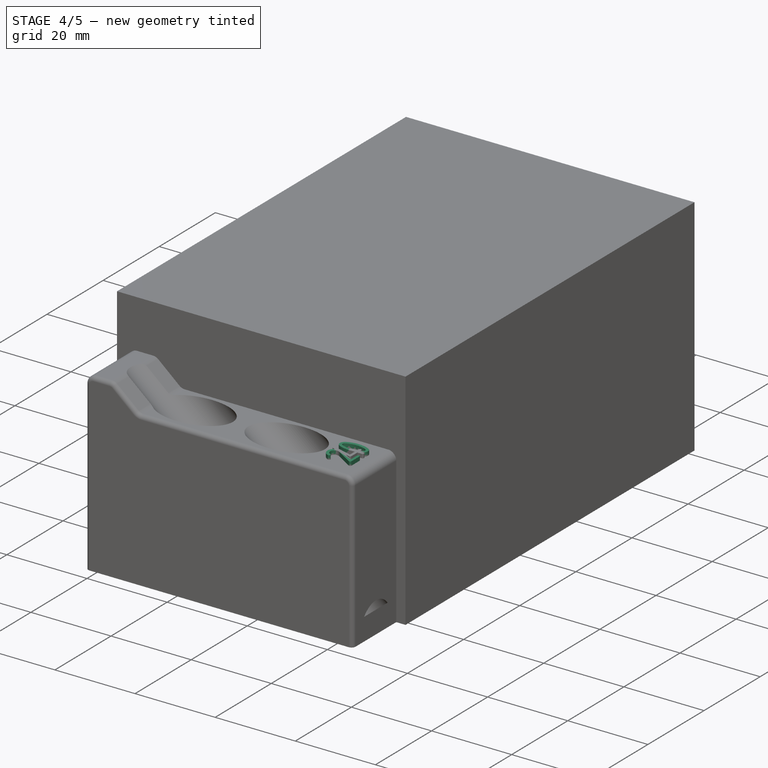
[diagram: stage 4 of 5 — iso view after this stage's code; geometry added in this stage tinted green]
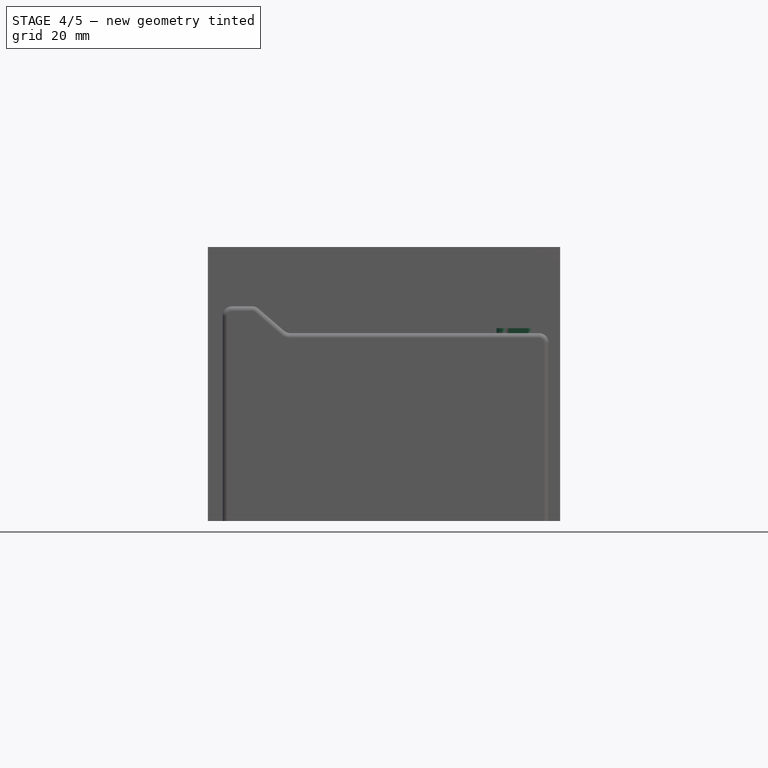
[diagram: stage 4 of 5 — front view after this stage's code; geometry added in this stage tinted green]
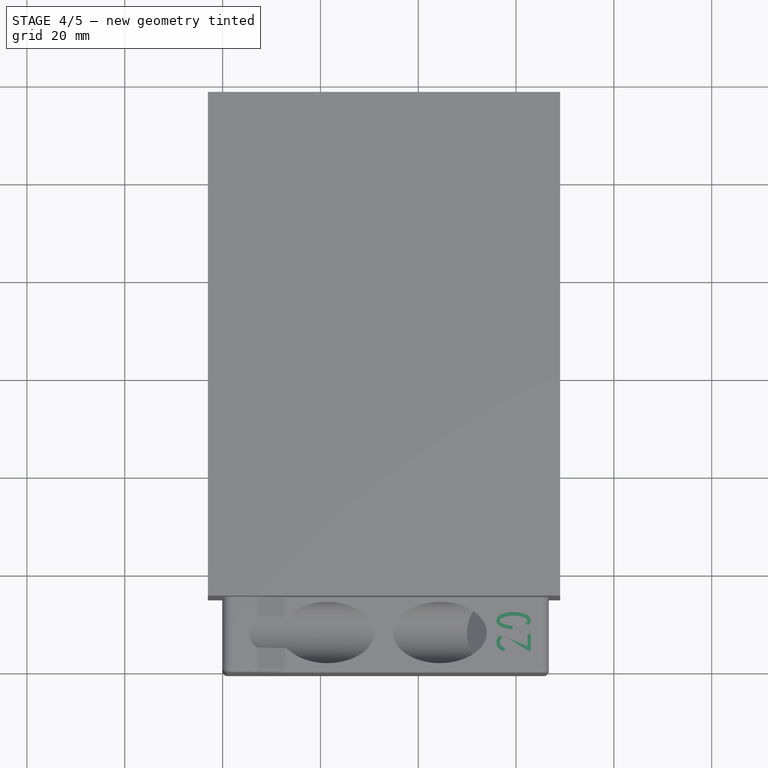
[diagram: stage 4 of 5 — top view after this stage's code; geometry added in this stage tinted green]
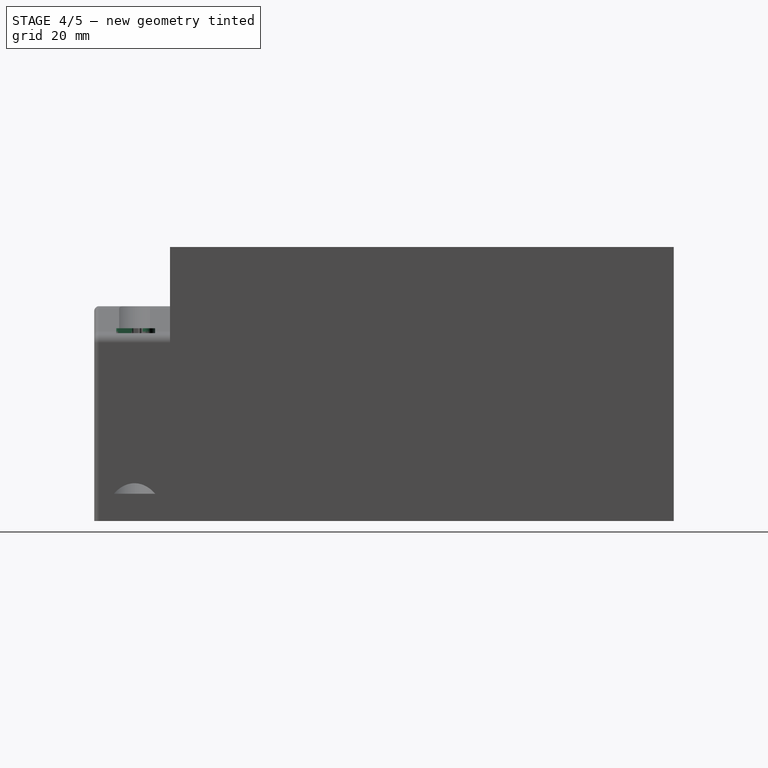
[diagram: stage 4 of 5 — right view after this stage's code; geometry added in this stage tinted green]
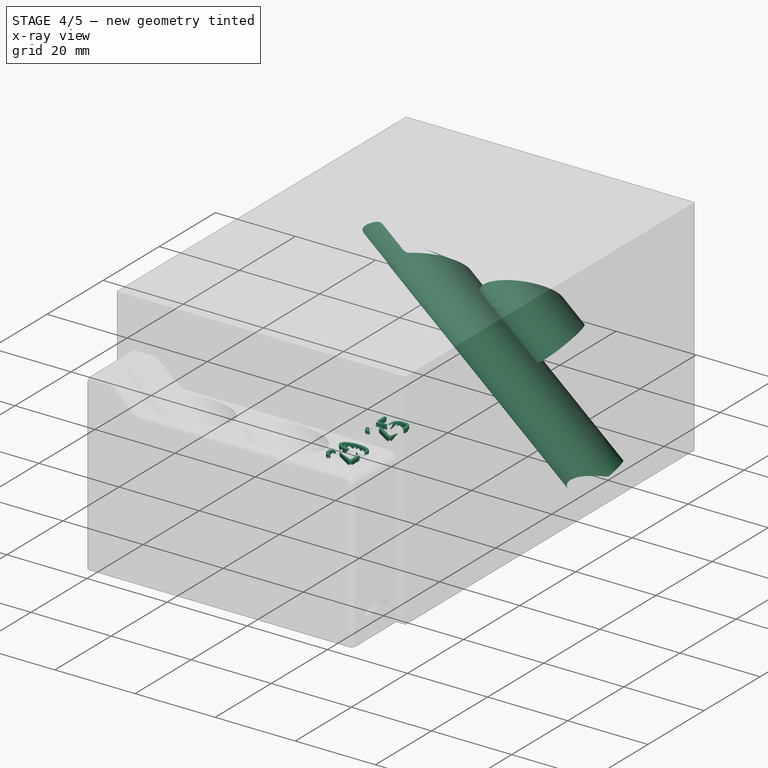
[diagram: stage 4 of 5 — x-ray composite at the iso view; earlier geometry ghosted, this stage's added geometry solid]
FEATURE [Sketcher::SketchObject] Sketch001
  ArcFitTolerance = 1e-06
  AttachmentSupport = -> [Pad]
  ExternalGeometry = -> [Pad]
  FullyConstrained = true
  MakeInternals = false
  MapMode = 5
  Placement = pos=(4.78885,-1.8e-15,-4.11821) rot=(-0.41712,0,0.908851;3.14159rad)
  sketch-geometry (15):
    g0: Circle CenterX=-58.0772 CenterY=92.25 CenterZ=0 NormalX=0 NormalY=0 NormalZ=1 AngleXU=0 Radius=6.25
    g1: Circle CenterX=-58.0772 CenterY=78.25 CenterZ=0 NormalX=0 NormalY=0 NormalZ=1 AngleXU=0 Radius=6.25
    g2: Circle CenterX=-58.0772 CenterY=64.25 CenterZ=0 NormalX=0 NormalY=0 NormalZ=1 AngleXU=0 Radius=6.25
    g3: Circle CenterX=-58.0772 CenterY=8.25 CenterZ=0 NormalX=0 NormalY=0 NormalZ=1 AngleXU=0 Radius=6.25
    g4: Circle CenterX=-58.0772 CenterY=50.25 CenterZ=0 NormalX=0 NormalY=0 NormalZ=1 AngleXU=0 Radius=6.25
    g5: Circle CenterX=-58.0772 CenterY=36.25 CenterZ=0 NormalX=0 NormalY=0 NormalZ=1 AngleXU=0 Radius=6.25
    g6: Circle CenterX=-58.0772 CenterY=22.25 CenterZ=0 NormalX=0 NormalY=0 NormalZ=1 AngleXU=0 Radius=6.25
    g7: LineSegment [constr] StartX=-58.0772 StartY=86 StartZ=0 EndX=-58.0772 EndY=84.5 EndZ=0
    g8: LineSegment [constr] StartX=-58.0772 StartY=70.5 StartZ=0 EndX=-58.0772 EndY=72 EndZ=0
    g9: LineSegment [constr] StartX=-58.0772 StartY=56.5 StartZ=0 EndX=-58.0772 EndY=58 EndZ=0
    g10: LineSegment [constr] StartX=-58.0772 StartY=100.5 StartZ=0 EndX=-58.0772 EndY=98.5 EndZ=0
    g11: LineSegment [constr] StartX=-58.0772 StartY=42.5 StartZ=0 EndX=-58.0772 EndY=44 EndZ=0
    g12: LineSegment [constr] StartX=-58.0772 StartY=30 StartZ=0 EndX=-58.0772 EndY=28.5 EndZ=0
    g13: LineSegment [constr] StartX=-58.0772 StartY=14.5 StartZ=0 EndX=-58.0772 EndY=16 EndZ=0
    g14: LineSegment [constr] StartX=-58.0772 StartY=2 StartZ=0 EndX=-58.0772 EndY=2.8e-14 EndZ=0
  constraints (53):
    c: PointOnObject(g0,g-3)
    c: PointOnObject(g1,g-3)
    c: PointOnObject(g2,g-3)
    c: PointOnObject(g4,g-3)
    c: PointOnObject(g5,g-3)
    c: PointOnObject(g6,g-3)
    c: Equal(g0,g1)
    c: Equal(g1,g2)
    c: Equal(g2,g3)
    c: Equal(g3,g4)
    c: Equal(g4,g5)
    c: Equal(g5,g6)
    c: Diameter(g0) = 12.5
    c: PointOnObject(g7,g0)
    c: PointOnObject(g7,g-3)
    c: Vertical(g7)
    c: PointOnObject(g7,g1)
    c: DistanceY(g7,g7) = 1.5
    c: PointOnObject(g8,g2)
    c: PointOnObject(g8,g1)
    c: Vertical(g8)
    c: PointOnObject(g8,g-3)
    c: Equal(g8,g7)
    c: PointOnObject(g9,g4)
    c: PointOnObject(g9,g2)
    c: PointOnObject(g9,g-3)
    c: Vertical(g9)
    c: Equal(g9,g8)
    c: Coincident(g10,g-3)
    c: PointOnObject(g10,g0)
    c: Vertical(g10)
    c: DistanceY(g10,g10) = 2
    c: PointOnObject(g11,g5)
    c: PointOnObject(g11,g4)
    c: Vertical(g11)
    c: PointOnObject(g11,g-3)
    c: Equal(g11,g9)
    c: PointOnObject(g12,g5)
    c: PointOnObject(g12,g6)
    c: Vertical(g12)
    c: PointOnObject(g12,g-3)
    c: Equal(g12,g11)
    c: PointOnObject(g13,g3)
    c: PointOnObject(g13,g6)
    c: Vertical(g13)
    c: Vertical(g13,g-3)
    c: Equal(g13,g12)
    c: Vertical(g3,g6)
    c: PointOnObject(g14,g3)
    c: Vertical(g14)
    c: Equal(g14,g10)
    c: Perpendicular(g3,g14)
    c: DistanceY(g14,g10) = 100.5
FEATURE [PartDesign::Pocket] Pocket
  BaseFeature = -> Pad
  Direction = (0.758201,0,-0.652021)
  Length = 15
  Length2 = 5
  Placement = pos=(0,0,0) rot=(1,0,0;1.5708rad)
  Profile = -> Sketch001
  ReferenceAxis = -> Sketch001 [N_Axis]
  Refine = true
  Suppressed = false
  Type = 4
FEATURE [Sketcher::SketchObject] Sketch002
  ArcFitTolerance = 1e-06
  AttachmentSupport = -> [Pocket]
  ExternalGeometry = -> [Pocket]
  FullyConstrained = true
  MakeInternals = false
  MapMode = 5
  Placement = pos=(-19.7668,7.6e-15,16.9986) rot=(-0.41712,0,0.908851;3.14159rad)
  sketch-geometry (14):
    g0: Circle CenterX=-43.0772 CenterY=8.25 CenterZ=0 NormalX=0 NormalY=0 NormalZ=1 AngleXU=0 Radius=6.25
    g1: LineSegment [constr] StartX=-43.0772 StartY=-7.3e-15 StartZ=0 EndX=-43.0772 EndY=2 EndZ=0
    g2: LineSegment [constr] StartX=-43.0772 StartY=14.5 StartZ=0 EndX=-43.0772 EndY=16 EndZ=0
    g3: Circle CenterX=-43.0772 CenterY=22.25 CenterZ=0 NormalX=0 NormalY=0 NormalZ=1 AngleXU=0 Radius=6.25
    g4: Circle CenterX=-43.0772 CenterY=36.25 CenterZ=0 NormalX=0 NormalY=0 NormalZ=1 AngleXU=0 Radius=6.25
    g5: LineSegment [constr] StartX=-43.0772 StartY=28.5 StartZ=0 EndX=-43.0772 EndY=30 EndZ=0
    g6: Circle CenterX=-43.0772 CenterY=50.25 CenterZ=0 NormalX=0 NormalY=0 NormalZ=1 AngleXU=0 Radius=6.25
    g7: LineSegment [constr] StartX=-43.0772 StartY=42.5 StartZ=0 EndX=-43.0772 EndY=44 EndZ=0
    g8: Circle CenterX=-43.0772 CenterY=64.25 CenterZ=0 NormalX=0 NormalY=0 NormalZ=1 AngleXU=0 Radius=6.25
    g9: LineSegment [constr] StartX=-43.0772 StartY=56.5 StartZ=0 EndX=-43.0772 EndY=58 EndZ=0
    g10: Circle CenterX=-43.0772 CenterY=78.25 CenterZ=0 NormalX=0 NormalY=0 NormalZ=1 AngleXU=0 Radius=6.25
    g11: LineSegment [constr] StartX=-43.0772 StartY=70.5 StartZ=0 EndX=-43.0772 EndY=72 EndZ=0
    g12: LineSegment [constr] StartX=-43.0772 StartY=84.5 StartZ=0 EndX=-43.0772 EndY=86 EndZ=0
    g13: Circle CenterX=-43.0772 CenterY=92.25 CenterZ=0 NormalX=0 NormalY=0 NormalZ=1 AngleXU=0 Radius=6.25
  constraints (48):
    c: PointOnObject(g0,g-3)
    c: Coincident(g1,g-3)
    c: PointOnObject(g1,g-3)
    c: PointOnObject(g1,g0)
    c: Diameter(g0) = 12.5
    c: PointOnObject(g2,g0)
    c: PointOnObject(g2,g-3)
    c: Vertical(g2)
    c: DistanceY(g2,g2) = 1.5
    c: DistanceY(g1,g1) = 2
    c: PointOnObject(g3,g-3)
    c: PointOnObject(g2,g3)
    c: Equal(g0,g3)
    c: PointOnObject(g4,g-3)
    c: PointOnObject(g5,g3)
    c: PointOnObject(g5,g-3)
    c: Vertical(g5)
    c: PointOnObject(g5,g4)
    c: Equal(g2,g5)
    c: Equal(g3,g4)
    c: PointOnObject(g7,g4)
    c: PointOnObject(g7,g6)
    c: Vertical(g7)
    c: PointOnObject(g7,g-3)
    c: Equal(g7,g5)
    c: PointOnObject(g6,g-3)
    c: Equal(g4,g6)
    c: PointOnObject(g8,g-3)
    c: PointOnObject(g9,g6)
    c: PointOnObject(g9,g8)
    c: Vertical(g9)
    c: PointOnObject(g9,g-3)
    c: Equal(g6,g8)
    c: Equal(g9,g7)
    c: PointOnObject(g10,g-3)
    c: PointOnObject(g11,g8)
    c: PointOnObject(g11,g10)
    c: Vertical(g11)
    c: PointOnObject(g11,g-3)
    c: Equal(g10,g8)
    c: Equal(g11,g9)
    c: PointOnObject(g12,g10)
    c: PointOnObject(g12,g-3)
    c: Vertical(g12)
    c: Equal(g12,g11)
    c: PointOnObject(g13,g-3)
    c: PointOnObject(g12,g13)
    c: Equal(g13,g10)
FEATURE [PartDesign::Pocket] Pocket001
  BaseFeature = -> Pocket
  Direction = (0.758201,0,-0.652021)
  Length = 73
  Length2 = 6
  Placement = pos=(0,0,0) rot=(1,0,0;1.5708rad)
  Profile = -> Sketch002
  ReferenceAxis = -> Sketch002 [N_Axis]
  Refine = true
  Suppressed = false
  Type = 4
FEATURE [Sketcher::SketchObject] Sketch003
  ArcFitTolerance = 1e-06
  AttachmentSupport = -> [Pocket001]
  ExternalGeometry = -> [Pocket001]
  FullyConstrained = true
  MakeInternals = false
  MapMode = 5
  Placement = pos=(0,-100.5,0) rot=(1,0,0;1.5708rad)
  sketch-geometry (18):
    g0: LineSegment StartX=13.8814 StartY=38.3996 StartZ=0 EndX=64.6893 EndY=38.3996 EndZ=0
    g1: LineSegment StartX=66.6893 StartY=36.3996 StartZ=0 EndX=66.6893 EndY=34.3996 EndZ=0
    g2: ArcOfCircle CenterX=64.6893 CenterY=36.3996 CenterZ=0 NormalX=0 NormalY=0 NormalZ=1 AngleXU=0 Radius=2 StartAngle=-9e-16 EndAngle=1.5708
    g3: GeomPoint [constr] X=66.6893 Y=38.3996 Z=0
    g4: LineSegment StartX=12.5773 StartY=38.8832 StartZ=0 EndX=7.30404 EndY=43.418 EndZ=0
    g5: LineSegment StartX=0 StartY=41.9016 StartZ=0 EndX=0 EndY=39.9016 EndZ=0
    g6: ArcOfCircle CenterX=2 CenterY=41.9016 CenterZ=0 NormalX=0 NormalY=0 NormalZ=1 AngleXU=0 Radius=2 StartAngle=1.5708 EndAngle=3.14159
    g7: GeomPoint [constr] X=0 Y=48.9016 Z=0
    g8: LineSegment StartX=0 StartY=39.9016 StartZ=0 EndX=-2 EndY=39.9016 EndZ=0
    g9: LineSegment StartX=-2 StartY=39.9016 StartZ=0 EndX=-2 EndY=69.9016 EndZ=0
    g10: LineSegment StartX=-2 StartY=69.9016 StartZ=0 EndX=68.6893 EndY=69.9016 EndZ=0
    g11: LineSegment StartX=68.6893 StartY=69.9016 StartZ=0 EndX=68.6893 EndY=34.3996 EndZ=0
    g12: LineSegment StartX=68.6893 StartY=34.3996 StartZ=0 EndX=66.6893 EndY=34.3996 EndZ=0
    g13: LineSegment [constr] StartX=20.4043 StartY=48.9016 StartZ=0 EndX=32.6165 EndY=38.3996 EndZ=0
    g14: ArcOfCircle CenterX=6 CenterY=41.9016 CenterZ=0 NormalX=0 NormalY=0 NormalZ=1 AngleXU=0 Radius=2 StartAngle=0.860549 EndAngle=1.5708
    g15: ArcOfCircle CenterX=13.8814 CenterY=40.3996 CenterZ=0 NormalX=0 NormalY=0 NormalZ=1 AngleXU=0 Radius=2 StartAngle=4.00214 EndAngle=4.71239
    g16: GeomPoint [constr] X=13.1397 Y=38.3996 Z=0
    g17: LineSegment StartX=2 StartY=43.9016 StartZ=0 EndX=6 EndY=43.9016 EndZ=0
  constraints (44):
    c: Vertical(g1)
    c: Coincident(g3,g-4)
    c: PointOnObject(g3,g0)
    c: PointOnObject(g3,g1)
    c: Tangent(g0,g2) = 1.5708
    c: Tangent(g1,g2) = 1.5708
    c: Radius(g2) = 2
    c: Vertical(g5)
    c: Tangent(g5,g6) = -1.5708
    c: Radius(g6) = 2
    c: Coincident(g7,g-3)
    c: Coincident(g8,g5)
    c: Horizontal(g8)
    c: Coincident(g9,g8)
    c: Vertical(g9)
    c: Coincident(g10,g9)
    c: Horizontal(g10)
    c: Coincident(g11,g10)
    c: Vertical(g11)
    c: Coincident(g12,g11)
    c: Coincident(g12,g1)
    c: Horizontal(g12)
    c: DistanceY(g1,g1) = 2
    c: Equal(g12,g1)
    c: DistanceY(g5,g5) = 2
    c: Equal(g8,g5)
    c: DistanceY(g9,g9) = 30
    c: Coincident(g13,g-6)
    c: Coincident(g13,g-5)
    c: Parallel(g4,g13)
    c: Horizontal(g0)
    c: Tangent(g4,g14) = -1.5708
    c: Radius(g14) = 2
    c: PointOnObject(g16,g0)
    c: PointOnObject(g16,g4)
    c: Tangent(g0,g15) = -1.5708
    c: Tangent(g4,g15) = 1.5708
    c: Equal(g15,g14)
    c: Horizontal(g17)
    c: Tangent(g17,g6) = 1.5708
    c: Tangent(g17,g14) = 1.5708
    c: PointOnObject(g5,g-2)
    c: DistanceY(g5,g7) = 9
    c: DistanceX(g17,g17) = 4
FEATURE [PartDesign::Pocket] Pocket002
  BaseFeature = -> Pocket001
  Direction = (0,1,-2e-16)
  Length = 110
  Length2 = 5
  Placement = pos=(0,0,0) rot=(1,0,0;1.5708rad)
  Profile = -> Sketch003
  ReferenceAxis = -> Sketch003 [N_Axis]
  Refine = true
  Suppressed = false
  Type = 0
FEATURE [PartDesign::Fillet] Fillet
  Base = -> Pocket002 [Edge72,Edge5]
  BaseFeature = -> Pocket002
  Placement = pos=(0,0,0) rot=(1,0,0;1.5708rad)
  Radius = 1
  Refine = true
  SupportTransform = false
  Suppressed = false
  UseAllEdges = false
FEATURE [Part::Part2DObjectPython] ShapeString  # Draft 2D object (typed FeaturePython)
  AttachmentOffset = pos=(-63,96,0) rot=(0,0,1;-1.5708rad)
  AttachmentSupport = -> [Fillet]
  FontFile = <userpath>/Downloads/osifont-master/osifont-master/osifont.ttf
  Fuse = false
  Justification = 6
  JustificationReference = 0
  KeepLeftMargin = false
  MakeFace = true
  MapMode = 5
  ObliqueAngle = 0
  Placement = pos=(63,-96,38.3996) rot=(0,0,-1;4.71239rad)
  ScaleToSize = true
  Size = 7
  String = 20
  Tracking = 0
FEATURE [Part::Part2DObjectPython] ShapeString001  # Draft 2D object (typed FeaturePython)
  AttachmentOffset = pos=(-63,82,0) rot=(0,0,1;-1.5708rad)
  AttachmentSupport = -> [Fillet]
  FontFile = <userpath>/Downloads/osifont-master/osifont-master/osifont.ttf
  Fuse = false
  Justification = 6
  JustificationReference = 0
  KeepLeftMargin = false
  MakeFace = true
  MapMode = 5
  ObliqueAngle = 0
  Placement = pos=(63,-82,38.3996) rot=(0,0,-1;4.71239rad)
  ScaleToSize = true
  Size = 7
  String = 25
  Tracking = 0
FEATURE [Part::Part2DObjectPython] ShapeString002  # Draft 2D object (typed FeaturePython)
  AttachmentOffset = pos=(-63,68,0) rot=(0,0,1;-1.5708rad)
  AttachmentSupport = -> [Fillet]
  FontFile = <userpath>/Downloads/osifont-master/osifont-master/osifont.ttf
  Fuse = false
  Justification = 6
  JustificationReference = 0
  KeepLeftMargin = false
  MakeFace = true
  MapMode = 5
  ObliqueAngle = 0
  Placement = pos=(63,-68,38.3996) rot=(0,0,-1;4.71239rad)
  ScaleToSize = true
  Size = 7
  String = 30
  Tracking = 0
FEATURE [Part::Part2DObjectPython] ShapeString003  # Draft 2D object (typed FeaturePython)
  AttachmentOffset = pos=(-63,54,0) rot=(0,0,1;-1.5708rad)
  AttachmentSupport = -> [Fillet]
  FontFile = <userpath>/Downloads/osifont-master/osifont-master/osifont.ttf
  Fuse = false
  Justification = 6
  JustificationReference = 0
  KeepLeftMargin = false
  MakeFace = true
  MapMode = 5
  ObliqueAngle = 0
  Placement = pos=(63,-54,38.3996) rot=(0,0,-1;4.71239rad)
  ScaleToSize = true
  Size = 7
  String = 40
  Tracking = 0
FEATURE [Part::Part2DObjectPython] ShapeString004  # Draft 2D object (typed FeaturePython)
  AttachmentOffset = pos=(-63,40,0) rot=(0,0,1;-1.5708rad)
  AttachmentSupport = -> [Fillet]
  FontFile = <userpath>/Downloads/osifont-master/osifont-master/osifont.ttf
  Fuse = false
  Justification = 6
  JustificationReference = 0
  KeepLeftMargin = false
  MakeFace = true
  MapMode = 5
  ObliqueAngle = 0
  Placement = pos=(63,-40,38.3996) rot=(0,0,-1;4.71239rad)
  ScaleToSize = true
  Size = 7
  String = 45
  Tracking = 0
FEATURE [Part::Part2DObjectPython] ShapeString005  # Draft 2D object (typed FeaturePython)
  AttachmentOffset = pos=(-63,26,0) rot=(0,0,1;-1.5708rad)
  AttachmentSupport = -> [Fillet]
  FontFile = <userpath>/Downloads/osifont-master/osifont-master/osifont.ttf
  Fuse = false
  Justification = 6
  JustificationReference = 0
  KeepLeftMargin = false
  MakeFace = true
  MapMode = 5
  ObliqueAngle = 0
  Placement = pos=(63,-26,38.3996) rot=(0,0,-1;4.71239rad)
  ScaleToSize = true
  Size = 7
  String = 50
  Tracking = 0
FEATURE [Part::Part2DObjectPython] ShapeString006  # Draft 2D object (typed FeaturePython)
  AttachmentOffset = pos=(-63,12,0) rot=(0,0,1;-1.5708rad)
  AttachmentSupport = -> [Fillet]
  FontFile = <userpath>/Downloads/osifont-master/osifont-master/osifont.ttf
  Fuse = false
  Justification = 6
  JustificationReference = 0
  KeepLeftMargin = false
  MakeFace = true
  MapMode = 5
  ObliqueAngle = 0
  Placement = pos=(63,-12,38.3996) rot=(0,0,-1;4.71239rad)
  ScaleToSize = true
  Size = 7
  String = 55
  Tracking = 0
FEATURE [PartDesign::Pad] Pad002
  BaseFeature = -> Fillet
  Direction = (0,0,1)
  Length = 1
  Length2 = 10
  Placement = pos=(0,0,0) rot=(1,0,0;1.5708rad)
  Profile = -> ShapeString
  ReferenceAxis = -> ShapeString [N_Axis]
  Refine = true
  Suppressed = false
  Type = 0
FEATURE [PartDesign::Pad] Pad003
  BaseFeature = -> Pad002
  Direction = (0,0,1)
  Length = 1
  Length2 = 10
  Placement = pos=(0,0,0) rot=(1,0,0;1.5708rad)
  Profile = -> ShapeString001
  ReferenceAxis = -> ShapeString001 [N_Axis]
  Refine = true
  Suppressed = false
  Type = 0
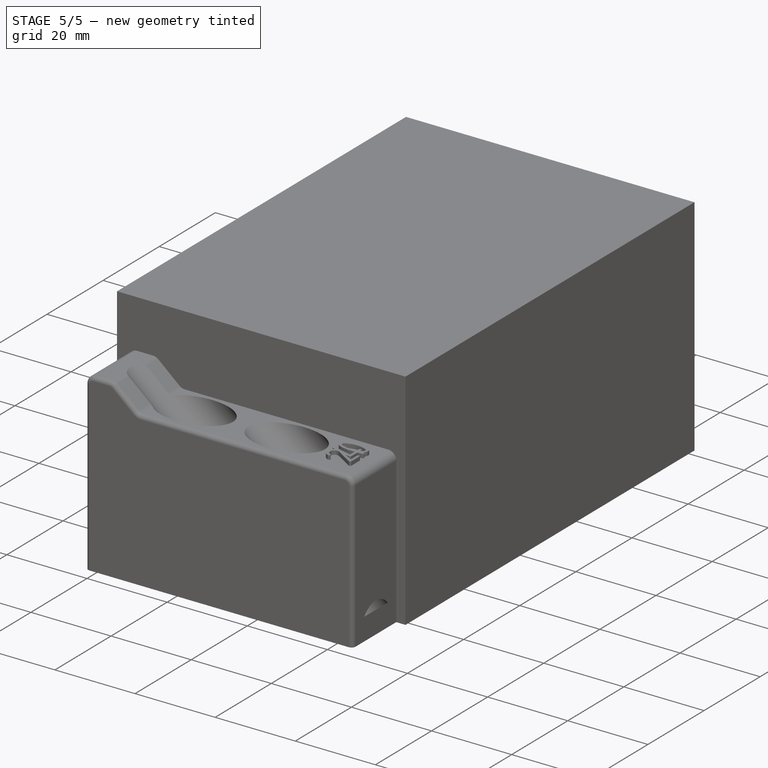
[diagram: stage 5 of 5 — iso view after this stage's code; geometry added in this stage tinted green]
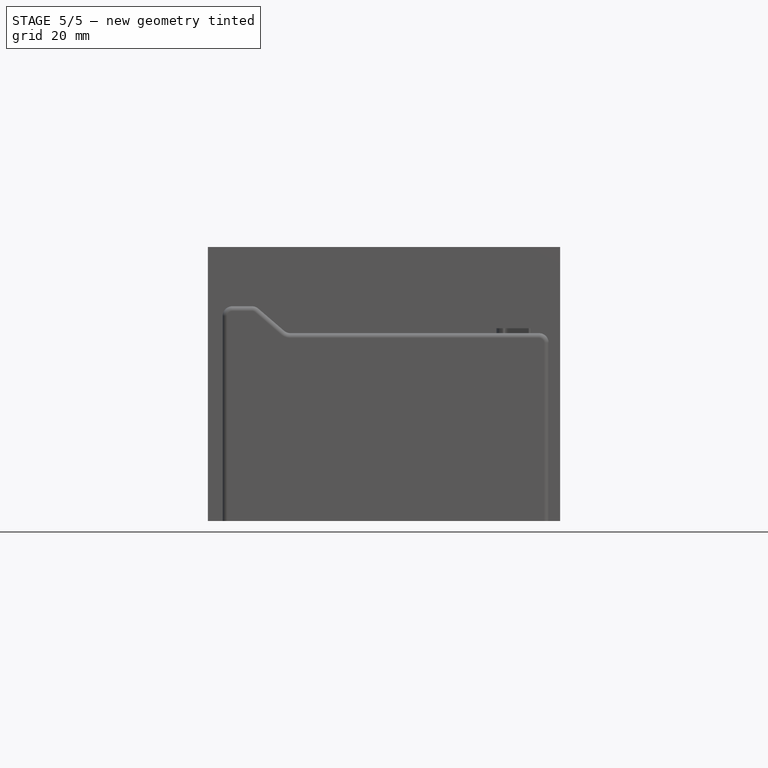
[diagram: stage 5 of 5 — front view after this stage's code; geometry added in this stage tinted green]
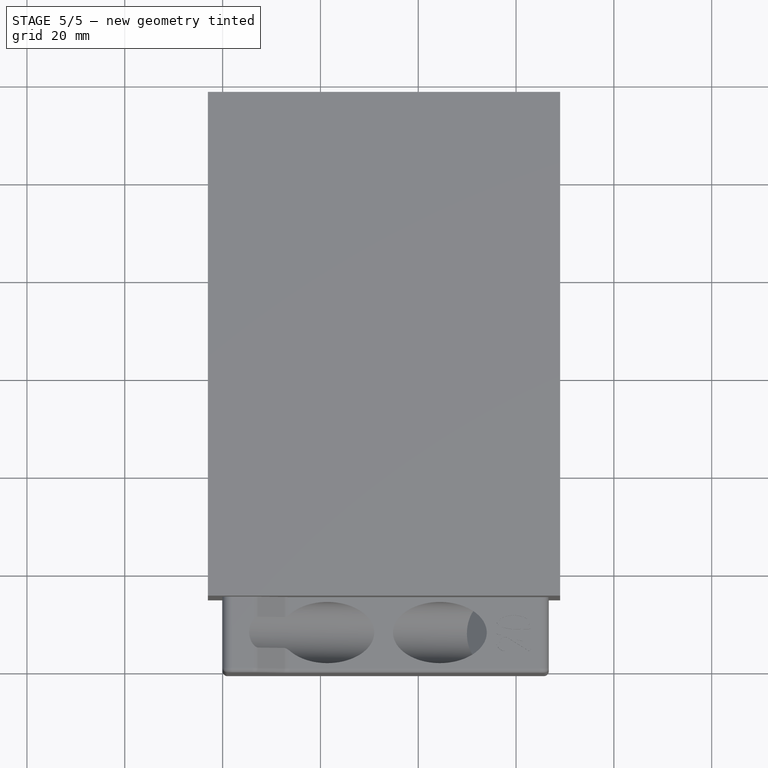
[diagram: stage 5 of 5 — top view after this stage's code; geometry added in this stage tinted green]
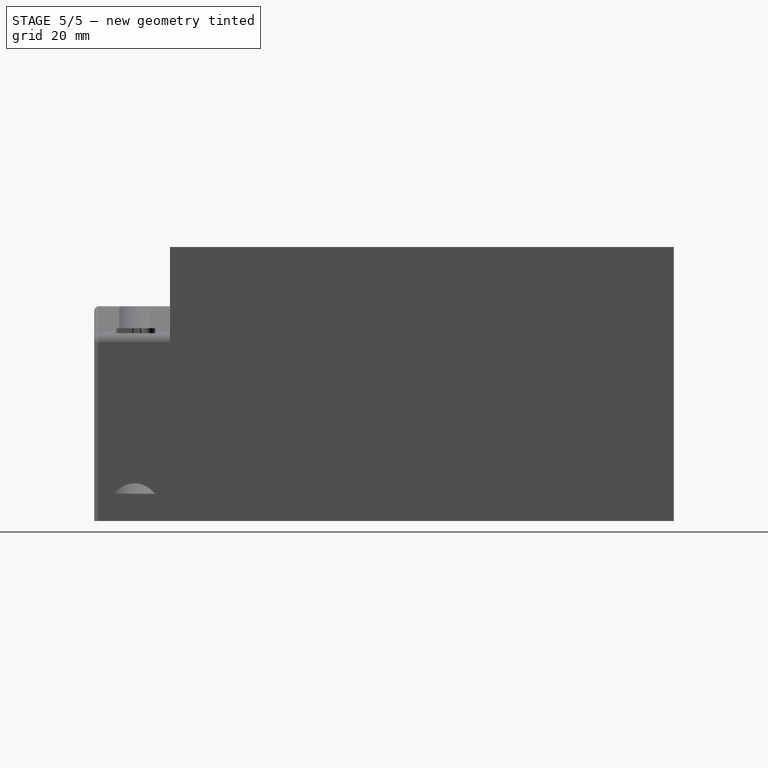
[diagram: stage 5 of 5 — right view after this stage's code; geometry added in this stage tinted green]
FEATURE [PartDesign::Pad] Pad004
  BaseFeature = -> Pad003
  Direction = (0,0,1)
  Length = 1
  Length2 = 10
  Placement = pos=(0,0,0) rot=(1,0,0;1.5708rad)
  Profile = -> ShapeString002
  ReferenceAxis = -> ShapeString002 [N_Axis]
  Refine = true
  Suppressed = false
  Type = 0
FEATURE [PartDesign::Pad] Pad005
  BaseFeature = -> Pad004
  Direction = (0,0,1)
  Length = 1
  Length2 = 10
  Placement = pos=(0,0,0) rot=(1,0,0;1.5708rad)
  Profile = -> ShapeString003
  ReferenceAxis = -> ShapeString003 [N_Axis]
  Refine = true
  Suppressed = false
  Type = 0
FEATURE [PartDesign::Pad] Pad006
  BaseFeature = -> Pad005
  Direction = (0,0,1)
  Length = 1
  Length2 = 10
  Placement = pos=(0,0,0) rot=(1,0,0;1.5708rad)
  Profile = -> ShapeString004
  ReferenceAxis = -> ShapeString004 [N_Axis]
  Refine = true
  Suppressed = false
  Type = 0
FEATURE [PartDesign::Pad] Pad007
  BaseFeature = -> Pad006
  Direction = (0,0,1)
  Length = 1
  Length2 = 10
  Placement = pos=(0,0,0) rot=(1,0,0;1.5708rad)
  Profile = -> ShapeString005
  ReferenceAxis = -> ShapeString005 [N_Axis]
  Refine = true
  Suppressed = false
  Type = 0
FEATURE [PartDesign::Pad] Pad008
  BaseFeature = -> Pad007
  Direction = (0,0,1)
  Length = 1
  Length2 = 10
  Placement = pos=(0,0,0) rot=(1,0,0;1.5708rad)
  Profile = -> ShapeString006
  ReferenceAxis = -> ShapeString006 [N_Axis]
  Refine = true
  Suppressed = false
  Type = 0
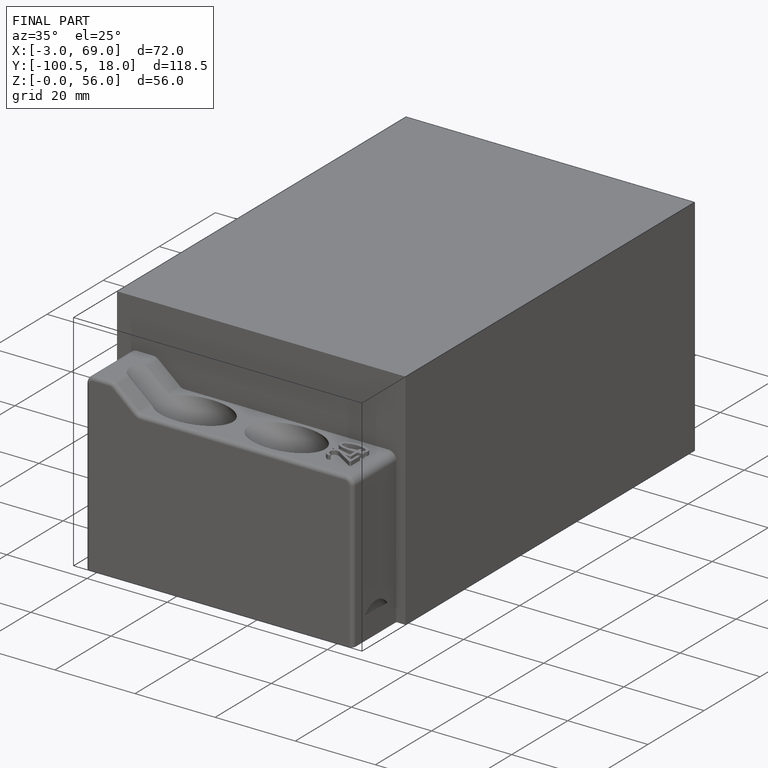
[diagram: finished part — iso view with bounding-box wireframe]
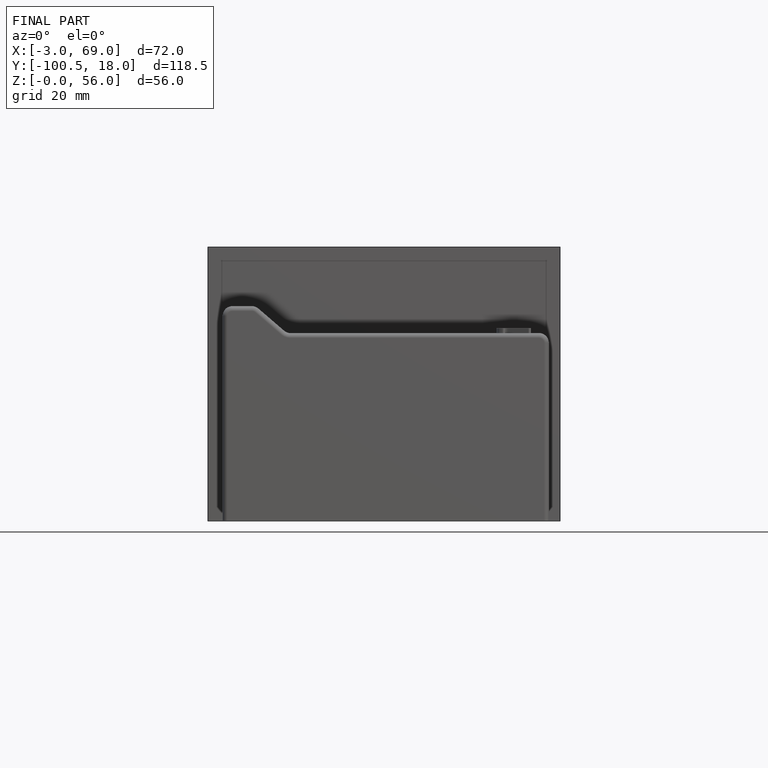
[diagram: finished part — front view with bounding-box wireframe]
